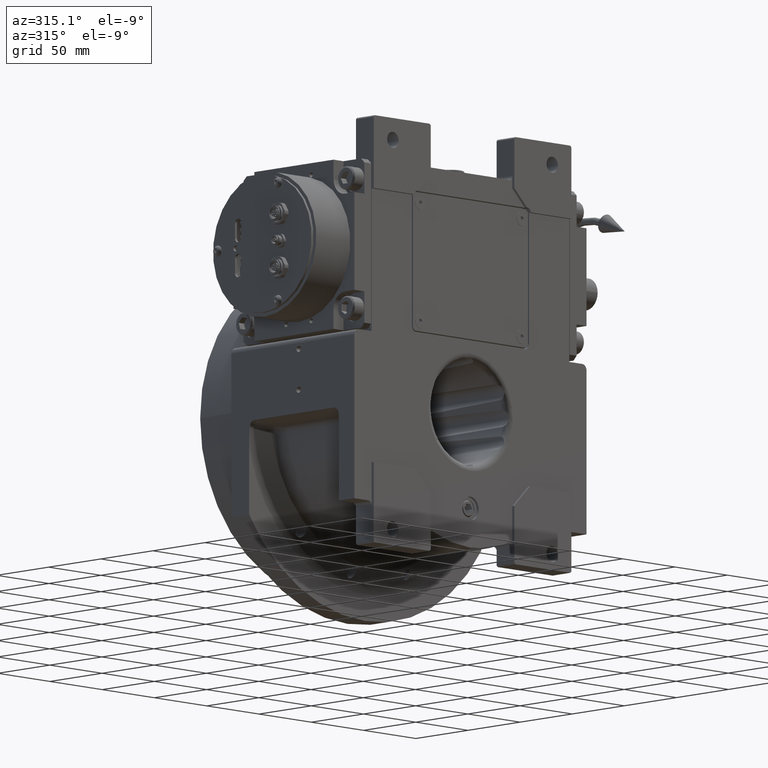
[diagram: clean part render]
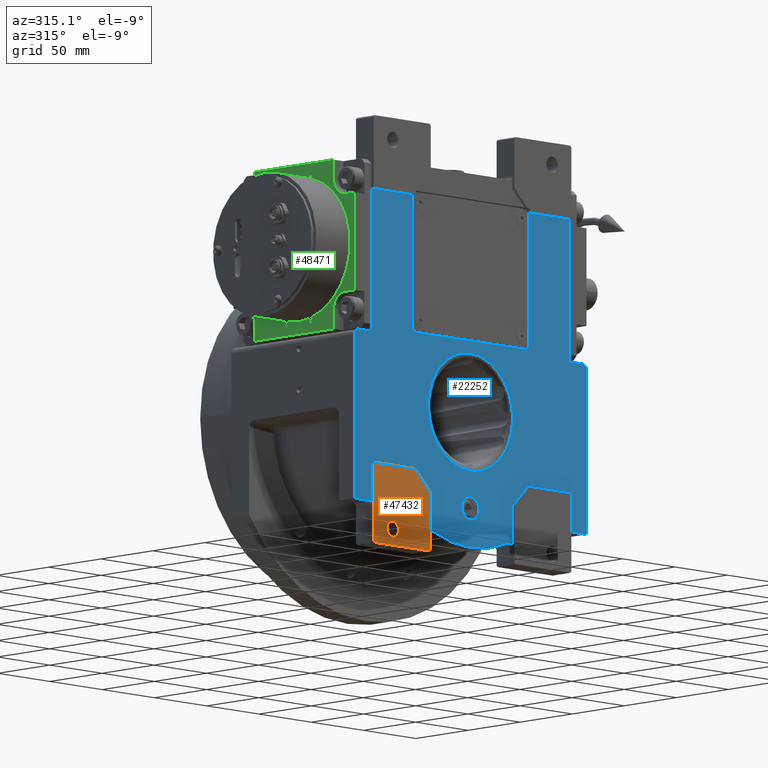
[diagram: same view with three faces highlighted in distinct colors, each labeled with its STEP entity id]
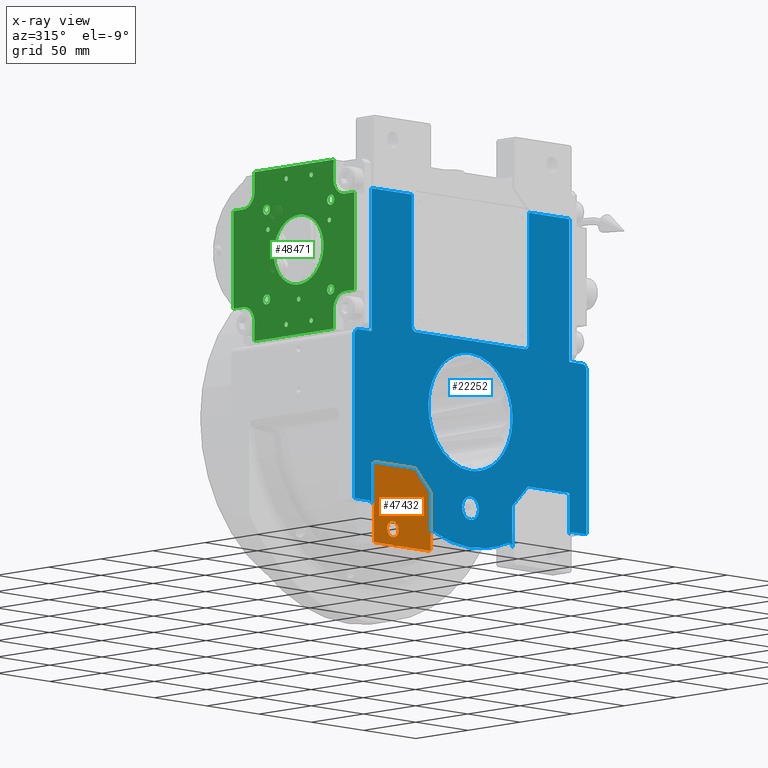
[diagram: x-ray of the same camera — body ghosted, the three highlighted faces saturated]
A machine part, auxiliary view with three faces highlighted in distinct colors.
The next image is the same camera in x-ray (body ghosted, the three faces saturated) — at least one of them is partly hidden behind the body in this view.
Their STEP definitions:

[orange] entity #47432 — the highlighted planar face has unit normal (0, -1, 0).
#55 = EDGE_CURVE ( 'NONE', #92444, #87323, #98988, .T. ) ;
#490 = VERTEX_POINT ( 'NONE', #98870 ) ;
#612 = DIRECTION ( 'NONE',  ( 0.7071067811865474617, 0.000000000000000000, -0.7071067811865474617 ) ) ;
#3598 = CARTESIAN_POINT ( 'NONE',  ( -55.00000000000000000, -55.50000000000000000, -45.00000000000000000 ) ) ;
#4281 = DIRECTION ( 'NONE',  ( -1.000000000000000000, 0.000000000000000000, 0.000000000000000000 ) ) ;
#5517 = CARTESIAN_POINT ( 'NONE',  ( -41.00000000000000000, -55.50000000000000000, -100.0000000000000000 ) ) ;
#6375 = VECTOR ( 'NONE', #58454, 1000.000000000000114 ) ;
#6552 = VERTEX_POINT ( 'NONE', #3598 ) ;
#6665 = EDGE_CURVE ( 'NONE', #96236, #6552, #89866, .T. ) ;
#7600 = EDGE_CURVE ( 'NONE', #490, #9720, #90962, .T. ) ;
#8492 = VERTEX_POINT ( 'NONE', #81477 ) ;
#9720 = VERTEX_POINT ( 'NONE', #88734 ) ;
#13145 = LINE ( 'NONE', #5517, #50026 ) ;
#13642 = DIRECTION ( 'NONE',  ( 0.000000000000000000, -1.000000000000000000, 0.000000000000000000 ) ) ;
#14151 = DIRECTION ( 'NONE',  ( -1.000000000000000000, 0.000000000000000000, 0.000000000000000000 ) ) ;
#16100 = VERTEX_POINT ( 'NONE', #90304 ) ;
#16269 = DIRECTION ( 'NONE',  ( 0.000000000000000000, 1.000000000000000000, 0.000000000000000000 ) ) ;
#18378 = AXIS2_PLACEMENT_3D ( 'NONE', #58644, #50015, #4281 ) ;
#20668 = CARTESIAN_POINT ( 'NONE',  ( -40.00000000000000000, -55.50000000000000000, -60.00000000000000000 ) ) ;
#21360 = DIRECTION ( 'NONE',  ( 1.000000000000000000, 0.000000000000000000, 0.000000000000000000 ) ) ;
#21733 = ORIENTED_EDGE ( 'NONE', *, *, #51929, .T. ) ;
#25198 = DIRECTION ( 'NONE',  ( 0.000000000000000000, 0.000000000000000000, 1.000000000000000000 ) ) ;
#27362 = DIRECTION ( 'NONE',  ( -1.000000000000000000, 0.000000000000000000, 0.000000000000000000 ) ) ;
#28897 = FACE_BOUND ( 'NONE', #68973, .T. ) ;
#28956 = CARTESIAN_POINT ( 'NONE',  ( -93.50000000000000000, -55.50000000000000000, -100.0000000000000000 ) ) ;
#29881 = ORIENTED_EDGE ( 'NONE', *, *, #86393, .T. ) ;
#30107 = VECTOR ( 'NONE', #27362, 1000.000000000000000 ) ;
#30936 = VECTOR ( 'NONE', #21360, 1000.000000000000000 ) ;
#31503 = CARTESIAN_POINT ( 'NONE',  ( -76.20000000000000284, -55.50000000000000000, -89.00000000000000000 ) ) ;
#32560 = EDGE_CURVE ( 'NONE', #6552, #490, #75098, .T. ) ;
#32574 = CARTESIAN_POINT ( 'NONE',  ( -94.50000000000000000, -55.50000000000000000, -99.00000000000000000 ) ) ;
#33309 = CARTESIAN_POINT ( 'NONE',  ( -40.00000000000000000, -55.50000000000000000, -99.00000000000000000 ) ) ;
#35673 = ORIENTED_EDGE ( 'NONE', *, *, #55, .T. ) ;
#36510 = DIRECTION ( 'NONE',  ( 0.7071067811865474617, 0.000000000000000000, 0.7071067811865474617 ) ) ;
#39222 = LINE ( 'NONE', #32574, #84364 ) ;
#44458 = CARTESIAN_POINT ( 'NONE',  ( -93.50000000000000000, -55.50000000000000000, -100.0000000000000000 ) ) ;
#44780 = DIRECTION ( 'NONE',  ( 0.000000000000000000, 0.000000000000000000, -1.000000000000000000 ) ) ;
#47277 = DIRECTION ( 'NONE',  ( 1.000000000000000000, 0.000000000000000000, 0.000000000000000000 ) ) ;
#47432 = ADVANCED_FACE ( 'NONE', ( #28897, #53802 ), #52280, .T. ) ;
#47673 = ORIENTED_EDGE ( 'NONE', *, *, #32560, .T. ) ;
#49107 = ORIENTED_EDGE ( 'NONE', *, *, #6665, .T. ) ;
#50015 = DIRECTION ( 'NONE',  ( 0.000000000000000000, 1.000000000000000000, 0.000000000000000000 ) ) ;
#50026 = VECTOR ( 'NONE', #36510, 1000.000000000000114 ) ;
#51929 = EDGE_CURVE ( 'NONE', #91321, #8492, #62145, .T. ) ;
#52280 = PLANE ( 'NONE',  #55124 ) ;
#53802 = FACE_OUTER_BOUND ( 'NONE', #97750, .T. ) ;
#54172 = CARTESIAN_POINT ( 'NONE',  ( -41.00000000000000000, -55.50000000000000000, -100.0000000000000000 ) ) ;
#55124 = AXIS2_PLACEMENT_3D ( 'NONE', #84709, #13642, #14151 ) ;
#55981 = ORIENTED_EDGE ( 'NONE', *, *, #80207, .T. ) ;
#57272 = AXIS2_PLACEMENT_3D ( 'NONE', #31503, #16269, #47277 ) ;
#58454 = DIRECTION ( 'NONE',  ( -0.7071067811865474617, 0.000000000000000000, 0.7071067811865474617 ) ) ;
#58644 = CARTESIAN_POINT ( 'NONE',  ( -76.20000000000000284, -55.50000000000000000, -89.00000000000000000 ) ) ;
#61034 = VECTOR ( 'NONE', #25198, 1000.000000000000000 ) ;
#61981 = VECTOR ( 'NONE', #44780, 1000.000000000000000 ) ;
#62145 = CIRCLE ( 'NONE', #57272, 5.500000000000005329 ) ;
#63682 = EDGE_CURVE ( 'NONE', #9720, #92444, #39222, .T. ) ;
#67059 = CARTESIAN_POINT ( 'NONE',  ( -40.00000000000000000, -55.50000000000000000, -60.00000000000000000 ) ) ;
#68973 = EDGE_LOOP ( 'NONE', ( #21733, #29881 ) ) ;
#75098 = LINE ( 'NONE', #90802, #30107 ) ;
#80207 = EDGE_CURVE ( 'NONE', #87323, #16100, #13145, .T. ) ;
#81477 = CARTESIAN_POINT ( 'NONE',  ( -81.69999999999998863, -55.50000000000000000, -89.00000000000000000 ) ) ;
#84364 = VECTOR ( 'NONE', #612, 1000.000000000000114 ) ;
#84709 = CARTESIAN_POINT ( 'NONE',  ( 0.000000000000000000, -55.50000000000000000, 0.000000000000000000 ) ) ;
#85526 = ORIENTED_EDGE ( 'NONE', *, *, #7600, .T. ) ;
#86393 = EDGE_CURVE ( 'NONE', #8492, #91321, #99406, .T. ) ;
#87323 = VERTEX_POINT ( 'NONE', #54172 ) ;
#88734 = CARTESIAN_POINT ( 'NONE',  ( -94.50000000000000000, -55.50000000000000000, -99.00000000000000000 ) ) ;
#89866 = LINE ( 'NONE', #67059, #6375 ) ;
#90304 = CARTESIAN_POINT ( 'NONE',  ( -40.00000000000000000, -55.50000000000000000, -99.00000000000000000 ) ) ;
#90802 = CARTESIAN_POINT ( 'NONE',  ( -55.00000000000000000, -55.50000000000000000, -45.00000000000000000 ) ) ;
#90962 = LINE ( 'NONE', #92975, #61981 ) ;
#91168 = EDGE_CURVE ( 'NONE', #16100, #96236, #95741, .T. ) ;
#91321 = VERTEX_POINT ( 'NONE', #92650 ) ;
#92444 = VERTEX_POINT ( 'NONE', #44458 ) ;
#92650 = CARTESIAN_POINT ( 'NONE',  ( -70.70000000000000284, -55.50000000000000000, -89.00000000000000000 ) ) ;
#92975 = CARTESIAN_POINT ( 'NONE',  ( -94.50000000000000000, -55.50000000000000000, -45.00000000000000000 ) ) ;
#95741 = LINE ( 'NONE', #33309, #61034 ) ;
#96236 = VERTEX_POINT ( 'NONE', #20668 ) ;
#97248 = ORIENTED_EDGE ( 'NONE', *, *, #91168, .T. ) ;
#97750 = EDGE_LOOP ( 'NONE', ( #35673, #55981, #97248, #49107, #47673, #85526, #99052 ) ) ;
#98870 = CARTESIAN_POINT ( 'NONE',  ( -94.50000000000000000, -55.50000000000000000, -45.00000000000000000 ) ) ;
#98988 = LINE ( 'NONE', #28956, #30936 ) ;
#99052 = ORIENTED_EDGE ( 'NONE', *, *, #63682, .T. ) ;
#99406 = CIRCLE ( 'NONE', #18378, 5.500000000000005329 ) ;

[blue] entity #22252 — the highlighted planar face has unit normal (0, 1, 0).
#92 = EDGE_CURVE ( 'NONE', #42017, #4329, #20846, .T. ) ;
#386 =( BOUNDED_CURVE ( )  B_SPLINE_CURVE ( 3, ( #20168, #76999, #1328, #55669 ),
 .UNSPECIFIED., .F., .F. ) 
 B_SPLINE_CURVE_WITH_KNOTS ( ( 4, 4 ),
 ( 4.574175343352308687, 7.715766673011676957 ),
 .UNSPECIFIED. ) 
 CURVE ( )  GEOMETRIC_REPRESENTATION_ITEM ( )  RATIONAL_B_SPLINE_CURVE ( ( 1.000000000000000000, 0.3333337746434750226, 0.3333337746434750226, 1.000000000000000000 ) ) 
 REPRESENTATION_ITEM ( '' )  );
#520 = DIRECTION ( 'NONE',  ( -0.3854166666666676289, 0.000000000000000000, 0.9227426472508761801 ) ) ;
#754 = DIRECTION ( 'NONE',  ( 1.000000000000000000, 0.000000000000000000, 0.000000000000000000 ) ) ;
#957 =( BOUNDED_CURVE ( )  B_SPLINE_CURVE ( 3, ( #37346, #29720, #46981, #77937 ),
 .UNSPECIFIED., .F., .F. ) 
 B_SPLINE_CURVE_WITH_KNOTS ( ( 4, 4 ),
 ( 1.432582689913126872, 4.574174019572492256 ),
 .UNSPECIFIED. ) 
 CURVE ( )  GEOMETRIC_REPRESENTATION_ITEM ( )  RATIONAL_B_SPLINE_CURVE ( ( 1.000000000000000000, 0.3333337746434759108, 0.3333337746434759108, 1.000000000000000000 ) ) 
 REPRESENTATION_ITEM ( '' )  );
#1328 = CARTESIAN_POINT ( 'NONE',  ( 80.61913312125007280, -53.49999999999999289, -40.30955543265933727 ) ) ;
#1357 = AXIS2_PLACEMENT_3D ( 'NONE', #14212, #29959, #21841 ) ;
#1366 = VERTEX_POINT ( 'NONE', #38615 ) ;
#2215 = EDGE_CURVE ( 'NONE', #23269, #16604, #43758, .T. ) ;
#2494 = CARTESIAN_POINT ( 'NONE',  ( 94.50000000000000000, -53.50000000000000000, -45.00000000000000000 ) ) ;
#2613 = ORIENTED_EDGE ( 'NONE', *, *, #9980, .F. ) ;
#2693 = DIRECTION ( 'NONE',  ( -1.000000000000000000, 0.000000000000000000, 0.000000000000000000 ) ) ;
#2726 = EDGE_CURVE ( 'NONE', #30020, #59581, #386, .T. ) ;
#3116 = CARTESIAN_POINT ( 'NONE',  ( -8.881784197001250351E-16, -53.50000000000000000, -66.00000000000000000 ) ) ;
#3368 = DIRECTION ( 'NONE',  ( 0.000000000000000000, -1.000000000000000000, 0.000000000000000000 ) ) ;
#4049 = AXIS2_PLACEMENT_3D ( 'NONE', #3116, #35591, #50350 ) ;
#4107 = CARTESIAN_POINT ( 'NONE',  ( 40.00000000000000000, -53.50000000000000000, -60.00000000000000000 ) ) ;
#4329 = VERTEX_POINT ( 'NONE', #34792 ) ;
#4505 = CARTESIAN_POINT ( 'NONE',  ( 56.00000000000000000, -53.50000000000000000, 53.00000000000000000 ) ) ;
#4809 = CIRCLE ( 'NONE', #98863, 3.000000000000002665 ) ;
#5374 = DIRECTION ( 'NONE',  ( -0.3854166666666672403, 0.000000000000000000, -0.9227426472508764022 ) ) ;
#5687 = DIRECTION ( 'NONE',  ( 0.000000000000000000, 1.000000000000000000, 0.000000000000000000 ) ) ;
#5848 = AXIS2_PLACEMENT_3D ( 'NONE', #52934, #5687, #51932 ) ;
#5979 = CARTESIAN_POINT ( 'NONE',  ( -56.00000000000000000, -53.50000000000000000, 142.0000000000000000 ) ) ;
#6007 = LINE ( 'NONE', #4505, #8566 ) ;
#6359 = CARTESIAN_POINT ( 'NONE',  ( 55.00000000000000000, -53.50000000000000000, -45.00000000000000000 ) ) ;
#6484 = VECTOR ( 'NONE', #754, 1000.000000000000000 ) ;
#7706 = CARTESIAN_POINT ( 'NONE',  ( -94.50000000000000000, -53.50000000000000000, 45.00000000000000000 ) ) ;
#7785 = CARTESIAN_POINT ( 'NONE',  ( -52.00000000000000000, -53.50000000000000000, 49.00000000000000000 ) ) ;
#7921 = LINE ( 'NONE', #85071, #41365 ) ;
#7927 = CARTESIAN_POINT ( 'NONE',  ( 35.84375000000000000, -53.50000000000000000, -85.81506619433150718 ) ) ;
#8001 = EDGE_CURVE ( 'NONE', #92857, #1366, #75519, .T. ) ;
#8138 = DIRECTION ( 'NONE',  ( 0.000000000000000000, 0.000000000000000000, -1.000000000000000000 ) ) ;
#8566 = VECTOR ( 'NONE', #20250, 1000.000000000000000 ) ;
#8723 = CARTESIAN_POINT ( 'NONE',  ( 40.00000000000000000, -53.50000000000000000, -60.00000000000000000 ) ) ;
#8875 = EDGE_CURVE ( 'NONE', #66546, #46514, #11297, .T. ) ;
#8948 = ORIENTED_EDGE ( 'NONE', *, *, #40065, .F. ) ;
#9509 = CARTESIAN_POINT ( 'NONE',  ( 55.87298334620739837, -53.50000000000000000, 143.0000000000000000 ) ) ;
#9583 = DIRECTION ( 'NONE',  ( -1.000000000000000000, 0.000000000000000000, 4.625929269271481378E-15 ) ) ;
#9937 = AXIS2_PLACEMENT_3D ( 'NONE', #73577, #66961, #97863 ) ;
#9980 = EDGE_CURVE ( 'NONE', #31491, #57099, #10805, .T. ) ;
#10450 = VECTOR ( 'NONE', #73292, 1000.000000000000000 ) ;
#10631 = EDGE_CURVE ( 'NONE', #87590, #93291, #66221, .T. ) ;
#10702 = DIRECTION ( 'NONE',  ( 0.000000000000000000, 0.000000000000000000, -1.000000000000000000 ) ) ;
#10792 = LINE ( 'NONE', #42309, #83886 ) ;
#10805 = LINE ( 'NONE', #95099, #85466 ) ;
#10938 = EDGE_CURVE ( 'NONE', #4329, #89324, #84741, .T. ) ;
#11297 = LINE ( 'NONE', #42787, #10450 ) ;
#11409 = ORIENTED_EDGE ( 'NONE', *, *, #91548, .T. ) ;
#11785 = DIRECTION ( 'NONE',  ( -1.000000000000000000, 0.000000000000000000, 1.734723475976808672E-15 ) ) ;
#11883 = AXIS2_PLACEMENT_3D ( 'NONE', #36381, #28247, #83575 ) ;
#11955 = DIRECTION ( 'NONE',  ( -3.469446951953617344E-15, 0.000000000000000000, 1.000000000000000000 ) ) ;
#12293 = EDGE_CURVE ( 'NONE', #42017, #23269, #4809, .T. ) ;
#12802 = DIRECTION ( 'NONE',  ( 0.000000000000000000, -1.000000000000000000, 0.000000000000000000 ) ) ;
#13025 = EDGE_CURVE ( 'NONE', #59581, #30020, #957, .T. ) ;
#13114 = EDGE_CURVE ( 'NONE', #77564, #69204, #85517, .T. ) ;
#13671 = EDGE_CURVE ( 'NONE', #93291, #72755, #82129, .T. ) ;
#14072 = CARTESIAN_POINT ( 'NONE',  ( 52.00000000000000000, -53.50000000000000000, 49.00000000000000000 ) ) ;
#14212 = CARTESIAN_POINT ( 'NONE',  ( -51.99999999999900524, -53.50000000000000000, 142.0000000000000000 ) ) ;
#14549 = ORIENTED_EDGE ( 'NONE', *, *, #52124, .T. ) ;
#15070 = ORIENTED_EDGE ( 'NONE', *, *, #63461, .F. ) ;
#15119 = ORIENTED_EDGE ( 'NONE', *, *, #51499, .F. ) ;
#15142 = ORIENTED_EDGE ( 'NONE', *, *, #40204, .T. ) ;
#15378 = ORIENTED_EDGE ( 'NONE', *, *, #55726, .T. ) ;
#15549 = CARTESIAN_POINT ( 'NONE',  ( 94.50000000000000000, -53.50000000000000000, -74.43528539874399996 ) ) ;
#15569 = ORIENTED_EDGE ( 'NONE', *, *, #40111, .F. ) ;
#15732 = LINE ( 'NONE', #46742, #47304 ) ;
#16037 = ORIENTED_EDGE ( 'NONE', *, *, #99379, .F. ) ;
#16266 = VERTEX_POINT ( 'NONE', #85702 ) ;
#16414 = CARTESIAN_POINT ( 'NONE',  ( 55.00000000000000000, -53.50000000000000000, -45.00000000000000000 ) ) ;
#16490 = CARTESIAN_POINT ( 'NONE',  ( -107.0000000000000000, -53.50000000000000000, 45.00000000000000000 ) ) ;
#16604 = VERTEX_POINT ( 'NONE', #7927 ) ;
#16860 = VECTOR ( 'NONE', #73128, 1000.000000000000000 ) ;
#18201 = CARTESIAN_POINT ( 'NONE',  ( -37.00000000000000000, -53.50000000000000000, -88.58329413608420566 ) ) ;
#18817 = ORIENTED_EDGE ( 'NONE', *, *, #12293, .T. ) ;
#18850 = CARTESIAN_POINT ( 'NONE',  ( -56.00000000000000000, -53.50000000000000000, 142.0000000000000000 ) ) ;
#19684 = CARTESIAN_POINT ( 'NONE',  ( -107.0000000000000000, -53.50000000000000000, 45.00000000000000000 ) ) ;
#20168 = CARTESIAN_POINT ( 'NONE',  ( -1.264761546777279996E-10, -53.50000000000000000, 40.30959420574835406 ) ) ;
#20250 = DIRECTION ( 'NONE',  ( 0.000000000000000000, 0.000000000000000000, 1.000000000000000000 ) ) ;
#20482 = CIRCLE ( 'NONE', #77238, 3.000000000000002665 ) ;
#20846 = LINE ( 'NONE', #29473, #56895 ) ;
#21061 = DIRECTION ( 'NONE',  ( 1.000000000000000000, 0.000000000000000000, 1.387778780781246883E-14 ) ) ;
#21137 = CARTESIAN_POINT ( 'NONE',  ( 1.421085471520200056E-14, -53.50000000000000000, -4.263256414560599853E-14 ) ) ;
#21142 = AXIS2_PLACEMENT_3D ( 'NONE', #52624, #53128, #30241 ) ;
#21333 = EDGE_CURVE ( 'NONE', #16266, #31491, #69829, .T. ) ;
#21469 = ORIENTED_EDGE ( 'NONE', *, *, #79338, .F. ) ;
#21533 = VECTOR ( 'NONE', #27875, 1000.000000000000000 ) ;
#21841 = DIRECTION ( 'NONE',  ( -0.9682458365518610277, 0.000000000000000000, 0.2499999999999737432 ) ) ;
#22252 = ADVANCED_FACE ( 'NONE', ( #29758, #38383, #31752 ), #62751, .F. ) ;
#22640 = CARTESIAN_POINT ( 'NONE',  ( 94.50000000000000000, -53.50000000000000000, 45.00000000000000000 ) ) ;
#22668 = VECTOR ( 'NONE', #62206, 1000.000000000000000 ) ;
#22686 = AXIS2_PLACEMENT_3D ( 'NONE', #21137, #36860, #5374 ) ;
#23269 = VERTEX_POINT ( 'NONE', #84323 ) ;
#23485 = CARTESIAN_POINT ( 'NONE',  ( -94.50000000000000000, -53.50000000000000000, -45.00000000000000000 ) ) ;
#23716 = EDGE_CURVE ( 'NONE', #34332, #33259, #7921, .T. ) ;
#24215 = VERTEX_POINT ( 'NONE', #16414 ) ;
#24529 = VECTOR ( 'NONE', #28329, 1000.000000000000000 ) ;
#24919 = ORIENTED_EDGE ( 'NONE', *, *, #10938, .F. ) ;
#24980 = EDGE_LOOP ( 'NONE', ( #32864, #37268 ) ) ;
#25115 = LINE ( 'NONE', #72349, #44211 ) ;
#25148 = CIRCLE ( 'NONE', #99711, 3.999999999999996447 ) ;
#27694 = ORIENTED_EDGE ( 'NONE', *, *, #13671, .F. ) ;
#27837 = VECTOR ( 'NONE', #71609, 1000.000000000000000 ) ;
#27875 = DIRECTION ( 'NONE',  ( 1.000000000000000000, 0.000000000000000000, 0.000000000000000000 ) ) ;
#28247 = DIRECTION ( 'NONE',  ( 0.000000000000000000, -1.000000000000000000, 0.000000000000000000 ) ) ;
#28329 = DIRECTION ( 'NONE',  ( 0.000000000000000000, 0.000000000000000000, -1.000000000000000000 ) ) ;
#28775 = VERTEX_POINT ( 'NONE', #46855 ) ;
#28789 = VERTEX_POINT ( 'NONE', #8723 ) ;
#29473 = CARTESIAN_POINT ( 'NONE',  ( -40.00000000000000000, -53.50000000000000000, -88.58329413608420566 ) ) ;
#29720 = CARTESIAN_POINT ( 'NONE',  ( -80.61913312099703433, -53.49999999999999289, -40.30952624498007708 ) ) ;
#29758 = FACE_BOUND ( 'NONE', #24980, .T. ) ;
#29959 = DIRECTION ( 'NONE',  ( 0.000000000000000000, -1.000000000000000000, 0.000000000000000000 ) ) ;
#30020 = VERTEX_POINT ( 'NONE', #79300 ) ;
#30241 = DIRECTION ( 'NONE',  ( 1.000000000000000000, 0.000000000000000000, 0.000000000000000000 ) ) ;
#30300 = CARTESIAN_POINT ( 'NONE',  ( 55.87298334620739837, -53.50000000000000000, 143.0000000000000000 ) ) ;
#30718 = CARTESIAN_POINT ( 'NONE',  ( -111.0000000000000000, -53.50000000000000000, -71.43528539874409944 ) ) ;
#31208 = CARTESIAN_POINT ( 'NONE',  ( 94.50000000000000000, -53.50000000000000000, 143.0000000000000000 ) ) ;
#31491 = VERTEX_POINT ( 'NONE', #22640 ) ;
#31752 = FACE_OUTER_BOUND ( 'NONE', #37179, .T. ) ;
#32488 = DIRECTION ( 'NONE',  ( 1.000000000000000000, 0.000000000000000000, 0.000000000000000000 ) ) ;
#32816 = VERTEX_POINT ( 'NONE', #65735 ) ;
#32864 = ORIENTED_EDGE ( 'NONE', *, *, #13025, .T. ) ;
#33259 = VERTEX_POINT ( 'NONE', #87429 ) ;
#33384 = ORIENTED_EDGE ( 'NONE', *, *, #41384, .F. ) ;
#34024 = ORIENTED_EDGE ( 'NONE', *, *, #92042, .F. ) ;
#34332 = VERTEX_POINT ( 'NONE', #63495 ) ;
#34365 = CIRCLE ( 'NONE', #60361, 3.000000000000003997 ) ;
#34792 = CARTESIAN_POINT ( 'NONE',  ( -40.00000000000000000, -53.50000000000000000, -60.00000000000000000 ) ) ;
#35200 = DIRECTION ( 'NONE',  ( 0.000000000000000000, 1.000000000000000000, 0.000000000000000000 ) ) ;
#35591 = DIRECTION ( 'NONE',  ( 0.000000000000000000, -1.000000000000000000, 0.000000000000000000 ) ) ;
#35973 = VERTEX_POINT ( 'NONE', #71989 ) ;
#36381 = CARTESIAN_POINT ( 'NONE',  ( 8.881784197001250351E-16, -53.50000000000000000, -66.00000000000000000 ) ) ;
#36860 = DIRECTION ( 'NONE',  ( 0.000000000000000000, -1.000000000000000000, 0.000000000000000000 ) ) ;
#36925 = DIRECTION ( 'NONE',  ( 1.000000000000000000, 0.000000000000000000, 0.000000000000000000 ) ) ;
#37179 = EDGE_LOOP ( 'NONE', ( #91495, #99573, #27694, #65319, #8948, #15070, #63808, #73951, #51850, #48583, #11409, #15119, #51075, #24919, #64375, #18817, #46947, #72492, #34024, #61217, #15569, #98541, #15378, #14549, #79992, #15142, #2613, #98065, #21469, #54838, #33384, #16037 ) ) ;
#37268 = ORIENTED_EDGE ( 'NONE', *, *, #2726, .T. ) ;
#37346 = CARTESIAN_POINT ( 'NONE',  ( 1.264666971694413862E-10, -53.50000000000000000, -40.30959420574829721 ) ) ;
#37354 = DIRECTION ( 'NONE',  ( -0.7071067811865474617, 0.000000000000000000, -0.7071067811865474617 ) ) ;
#38075 = CARTESIAN_POINT ( 'NONE',  ( -40.00000000000000000, -53.50000000000000000, -88.58329413608420566 ) ) ;
#38383 = FACE_BOUND ( 'NONE', #86518, .T. ) ;
#38615 = CARTESIAN_POINT ( 'NONE',  ( -94.50000000000000000, -53.50000000000000000, 45.00000000000000000 ) ) ;
#38694 = VECTOR ( 'NONE', #91848, 1000.000000000000114 ) ;
#39132 = EDGE_CURVE ( 'NONE', #24215, #28789, #91150, .T. ) ;
#39584 = VERTEX_POINT ( 'NONE', #23485 ) ;
#39837 = CARTESIAN_POINT ( 'NONE',  ( -8.000000000000000000, -53.50000000000000000, -66.00000000000000000 ) ) ;
#39945 = CIRCLE ( 'NONE', #5848, 3.000000000000002665 ) ;
#39992 = EDGE_CURVE ( 'NONE', #35973, #77564, #15732, .T. ) ;
#40065 = EDGE_CURVE ( 'NONE', #83220, #87590, #94408, .T. ) ;
#40111 = EDGE_CURVE ( 'NONE', #46514, #24215, #41592, .T. ) ;
#40204 = EDGE_CURVE ( 'NONE', #33259, #57099, #57016, .T. ) ;
#40331 = DIRECTION ( 'NONE',  ( 1.000000000000000000, 0.000000000000000000, 0.000000000000000000 ) ) ;
#40506 = DIRECTION ( 'NONE',  ( 1.000000000000000000, 0.000000000000000000, 0.000000000000000000 ) ) ;
#41365 = VECTOR ( 'NONE', #92193, 1000.000000000000000 ) ;
#41384 = EDGE_CURVE ( 'NONE', #32816, #67341, #6007, .T. ) ;
#41392 = CARTESIAN_POINT ( 'NONE',  ( -55.87298334620739837, -53.50000000000000000, 143.0000000000000000 ) ) ;
#41448 = CARTESIAN_POINT ( 'NONE',  ( -107.0000000000000000, -53.50000000000000000, 41.00000000000000000 ) ) ;
#41592 = LINE ( 'NONE', #2494, #27837 ) ;
#41853 = VERTEX_POINT ( 'NONE', #39837 ) ;
#42017 = VERTEX_POINT ( 'NONE', #38075 ) ;
#42139 = LINE ( 'NONE', #7785, #16860 ) ;
#42309 = CARTESIAN_POINT ( 'NONE',  ( -55.00000000000000000, -53.50000000000000000, -45.00000000000000000 ) ) ;
#42615 = LINE ( 'NONE', #91306, #21533 ) ;
#42787 = CARTESIAN_POINT ( 'NONE',  ( 94.50000000000000000, -53.50000000000000000, -74.43528539874399996 ) ) ;
#43665 = VERTEX_POINT ( 'NONE', #91260 ) ;
#43758 = CIRCLE ( 'NONE', #22686, 92.99999999999995737 ) ;
#43972 = EDGE_CURVE ( 'NONE', #92857, #35973, #25148, .T. ) ;
#44211 = VECTOR ( 'NONE', #55130, 1000.000000000000000 ) ;
#45311 = CARTESIAN_POINT ( 'NONE',  ( 52.00000000000000000, -53.50000000000000000, 53.00000000000000000 ) ) ;
#46514 = VERTEX_POINT ( 'NONE', #58757 ) ;
#46558 = ORIENTED_EDGE ( 'NONE', *, *, #70146, .F. ) ;
#46729 = VERTEX_POINT ( 'NONE', #61268 ) ;
#46742 = CARTESIAN_POINT ( 'NONE',  ( -111.0000000000000000, -53.50000000000000000, 41.00000000000000000 ) ) ;
#46855 = CARTESIAN_POINT ( 'NONE',  ( -52.00000000000000000, -53.50000000000000000, 49.00000000000000000 ) ) ;
#46947 = ORIENTED_EDGE ( 'NONE', *, *, #2215, .T. ) ;
#46981 = CARTESIAN_POINT ( 'NONE',  ( -80.61913312124997333, -53.49999999999999289, 40.30955543265923069 ) ) ;
#47304 = VECTOR ( 'NONE', #8138, 1000.000000000000000 ) ;
#48583 = ORIENTED_EDGE ( 'NONE', *, *, #13114, .T. ) ;
#50350 = DIRECTION ( 'NONE',  ( -1.000000000000000000, 0.000000000000000000, 0.000000000000000000 ) ) ;
#51075 = ORIENTED_EDGE ( 'NONE', *, *, #99108, .F. ) ;
#51499 = EDGE_CURVE ( 'NONE', #39584, #63464, #25115, .T. ) ;
#51822 = DIRECTION ( 'NONE',  ( 0.000000000000000000, 0.000000000000000000, 1.000000000000000000 ) ) ;
#51850 = ORIENTED_EDGE ( 'NONE', *, *, #39992, .T. ) ;
#51932 = DIRECTION ( 'NONE',  ( -1.000000000000000000, 0.000000000000000000, 0.000000000000000000 ) ) ;
#52124 = EDGE_CURVE ( 'NONE', #46729, #34332, #42615, .T. ) ;
#52624 = CARTESIAN_POINT ( 'NONE',  ( 0.000000000000000000, -53.50000000000000000, 0.000000000000000000 ) ) ;
#52934 = CARTESIAN_POINT ( 'NONE',  ( 97.50000000000000000, -53.50000000000000000, -74.43528539874399996 ) ) ;
#53128 = DIRECTION ( 'NONE',  ( -0.000000000000000000, 1.000000000000000000, 0.000000000000000000 ) ) ;
#53950 = DIRECTION ( 'NONE',  ( 0.000000000000000000, 0.000000000000000000, -1.000000000000000000 ) ) ;
#53967 = EDGE_CURVE ( 'NONE', #67341, #85180, #73716, .T. ) ;
#54838 = ORIENTED_EDGE ( 'NONE', *, *, #53967, .F. ) ;
#55130 = DIRECTION ( 'NONE',  ( 0.000000000000000000, 0.000000000000000000, -1.000000000000000000 ) ) ;
#55421 = CARTESIAN_POINT ( 'NONE',  ( -94.50000000000000000, -53.50000000000000000, 143.0000000000000000 ) ) ;
#55669 = CARTESIAN_POINT ( 'NONE',  ( 1.264666971694413862E-10, -53.50000000000000000, -40.30959420574829721 ) ) ;
#55713 = CIRCLE ( 'NONE', #11883, 8.000000000000000000 ) ;
#55726 = EDGE_CURVE ( 'NONE', #66546, #46729, #39945, .T. ) ;
#56895 = VECTOR ( 'NONE', #51822, 1000.000000000000000 ) ;
#57016 = CIRCLE ( 'NONE', #9937, 4.000000000000003553 ) ;
#57099 = VERTEX_POINT ( 'NONE', #91626 ) ;
#57322 = DIRECTION ( 'NONE',  ( 0.000000000000000000, 1.000000000000000000, 0.000000000000000000 ) ) ;
#58757 = CARTESIAN_POINT ( 'NONE',  ( 94.50000000000000000, -53.50000000000000000, -45.00000000000000000 ) ) ;
#59032 = CARTESIAN_POINT ( 'NONE',  ( -52.00000000000000000, -53.50000000000000000, 53.00000000000000000 ) ) ;
#59119 = CARTESIAN_POINT ( 'NONE',  ( -56.00000000000000000, -53.50000000000000000, 53.00000000000000000 ) ) ;
#59352 = CIRCLE ( 'NONE', #77401, 3.999999999999996447 ) ;
#59581 = VERTEX_POINT ( 'NONE', #74851 ) ;
#60361 = AXIS2_PLACEMENT_3D ( 'NONE', #70590, #62978, #520 ) ;
#61164 = CARTESIAN_POINT ( 'NONE',  ( 51.99999999999940314, -53.50000000000000000, 142.0000000000000000 ) ) ;
#61217 = ORIENTED_EDGE ( 'NONE', *, *, #39132, .F. ) ;
#61268 = CARTESIAN_POINT ( 'NONE',  ( 97.50000000000000000, -53.50000000000000000, -71.43528539874399996 ) ) ;
#61839 = VERTEX_POINT ( 'NONE', #84963 ) ;
#62206 = DIRECTION ( 'NONE',  ( 0.000000000000000000, 0.000000000000000000, -1.000000000000000000 ) ) ;
#62751 = PLANE ( 'NONE',  #21142 ) ;
#62978 = DIRECTION ( 'NONE',  ( 0.000000000000000000, 1.000000000000000000, 0.000000000000000000 ) ) ;
#63461 = EDGE_CURVE ( 'NONE', #1366, #83220, #82876, .T. ) ;
#63464 = VERTEX_POINT ( 'NONE', #99586 ) ;
#63495 = CARTESIAN_POINT ( 'NONE',  ( 111.0000000000000000, -53.50000000000000000, -71.43528539874399996 ) ) ;
#63808 = ORIENTED_EDGE ( 'NONE', *, *, #8001, .F. ) ;
#64375 = ORIENTED_EDGE ( 'NONE', *, *, #92, .F. ) ;
#65147 = EDGE_CURVE ( 'NONE', #16604, #43665, #34365, .T. ) ;
#65319 = ORIENTED_EDGE ( 'NONE', *, *, #10631, .F. ) ;
#65466 = ORIENTED_EDGE ( 'NONE', *, *, #73628, .F. ) ;
#65735 = CARTESIAN_POINT ( 'NONE',  ( 56.00000000000000000, -53.50000000000000000, 53.00000000000000000 ) ) ;
#66189 = DIRECTION ( 'NONE',  ( 0.000000000000000000, 0.000000000000000000, 1.000000000000000000 ) ) ;
#66221 = CIRCLE ( 'NONE', #1357, 4.000000000000978773 ) ;
#66546 = VERTEX_POINT ( 'NONE', #15549 ) ;
#66961 = DIRECTION ( 'NONE',  ( 0.000000000000000000, -1.000000000000000000, 0.000000000000000000 ) ) ;
#67341 = VERTEX_POINT ( 'NONE', #73770 ) ;
#68571 = CARTESIAN_POINT ( 'NONE',  ( -97.50000000000000000, -53.50000000000000000, -71.43528539874409944 ) ) ;
#68675 = DIRECTION ( 'NONE',  ( 0.000000000000000000, 0.000000000000000000, 1.000000000000000000 ) ) ;
#69204 = VERTEX_POINT ( 'NONE', #68571 ) ;
#69829 = LINE ( 'NONE', #31208, #22668 ) ;
#70014 = VECTOR ( 'NONE', #32488, 1000.000000000000000 ) ;
#70146 = EDGE_CURVE ( 'NONE', #41853, #61839, #78638, .T. ) ;
#70590 = CARTESIAN_POINT ( 'NONE',  ( 37.00000000000000000, -53.50000000000000000, -88.58329413608420566 ) ) ;
#71609 = DIRECTION ( 'NONE',  ( -1.000000000000000000, 0.000000000000000000, 0.000000000000000000 ) ) ;
#71989 = CARTESIAN_POINT ( 'NONE',  ( -111.0000000000000000, -53.50000000000000000, 41.00000000000000000 ) ) ;
#72349 = CARTESIAN_POINT ( 'NONE',  ( -94.50000000000000000, -53.50000000000000000, -45.00000000000000000 ) ) ;
#72492 = ORIENTED_EDGE ( 'NONE', *, *, #65147, .T. ) ;
#72684 = AXIS2_PLACEMENT_3D ( 'NONE', #45311, #12802, #53950 ) ;
#72755 = VERTEX_POINT ( 'NONE', #59119 ) ;
#73128 = DIRECTION ( 'NONE',  ( 1.000000000000000000, 0.000000000000000000, 0.000000000000000000 ) ) ;
#73292 = DIRECTION ( 'NONE',  ( 0.000000000000000000, 0.000000000000000000, 1.000000000000000000 ) ) ;
#73577 = CARTESIAN_POINT ( 'NONE',  ( 107.0000000000000000, -53.50000000000000000, 41.00000000000000000 ) ) ;
#73628 = EDGE_CURVE ( 'NONE', #61839, #41853, #55713, .T. ) ;
#73682 = LINE ( 'NONE', #4107, #98423 ) ;
#73716 = CIRCLE ( 'NONE', #91505, 4.000000000000572875 ) ;
#73770 = CARTESIAN_POINT ( 'NONE',  ( 56.00000000000000000, -53.50000000000000000, 142.0000000000000000 ) ) ;
#73951 = ORIENTED_EDGE ( 'NONE', *, *, #43972, .T. ) ;
#74851 = CARTESIAN_POINT ( 'NONE',  ( 1.264666971694413862E-10, -53.50000000000000000, -40.30959420574829721 ) ) ;
#75519 = LINE ( 'NONE', #19684, #92725 ) ;
#76999 = CARTESIAN_POINT ( 'NONE',  ( 80.61913312099713380, -53.49999999999999289, 40.30952624498025472 ) ) ;
#77238 = AXIS2_PLACEMENT_3D ( 'NONE', #80880, #35200, #66189 ) ;
#77401 = AXIS2_PLACEMENT_3D ( 'NONE', #59032, #82330, #11785 ) ;
#77564 = VERTEX_POINT ( 'NONE', #85520 ) ;
#77937 = CARTESIAN_POINT ( 'NONE',  ( -1.264761546777279996E-10, -53.50000000000000000, 40.30959420574835406 ) ) ;
#78638 = CIRCLE ( 'NONE', #4049, 8.000000000000000000 ) ;
#79061 = VECTOR ( 'NONE', #40506, 1000.000000000000000 ) ;
#79300 = CARTESIAN_POINT ( 'NONE',  ( -1.264761546777279996E-10, -53.50000000000000000, 40.30959420574835406 ) ) ;
#79338 = EDGE_CURVE ( 'NONE', #85180, #16266, #86671, .T. ) ;
#79674 = CARTESIAN_POINT ( 'NONE',  ( -94.50000000000000000, -53.50000000000000000, 143.0000000000000000 ) ) ;
#79992 = ORIENTED_EDGE ( 'NONE', *, *, #23716, .T. ) ;
#80880 = CARTESIAN_POINT ( 'NONE',  ( -97.50000000000000000, -53.50000000000000000, -74.43528539874409944 ) ) ;
#82129 = LINE ( 'NONE', #5979, #24529 ) ;
#82330 = DIRECTION ( 'NONE',  ( 0.000000000000000000, -1.000000000000000000, 0.000000000000000000 ) ) ;
#82876 = LINE ( 'NONE', #7706, #94076 ) ;
#83220 = VERTEX_POINT ( 'NONE', #55421 ) ;
#83575 = DIRECTION ( 'NONE',  ( 1.000000000000000000, 0.000000000000000000, 0.000000000000000000 ) ) ;
#83886 = VECTOR ( 'NONE', #2693, 1000.000000000000000 ) ;
#84323 = CARTESIAN_POINT ( 'NONE',  ( -35.84375000000000000, -53.50000000000000000, -85.81506619433150718 ) ) ;
#84741 = LINE ( 'NONE', #93860, #38694 ) ;
#84963 = CARTESIAN_POINT ( 'NONE',  ( 8.000000000000000000, -53.50000000000000000, -66.00000000000000000 ) ) ;
#85071 = CARTESIAN_POINT ( 'NONE',  ( 111.0000000000000000, -53.50000000000000000, -71.43528539874399996 ) ) ;
#85180 = VERTEX_POINT ( 'NONE', #30300 ) ;
#85466 = VECTOR ( 'NONE', #40331, 1000.000000000000000 ) ;
#85517 = LINE ( 'NONE', #30718, #6484 ) ;
#85520 = CARTESIAN_POINT ( 'NONE',  ( -111.0000000000000000, -53.50000000000000000, -71.43528539874409944 ) ) ;
#85702 = CARTESIAN_POINT ( 'NONE',  ( 94.50000000000000000, -53.50000000000000000, 143.0000000000000000 ) ) ;
#86518 = EDGE_LOOP ( 'NONE', ( #65466, #46558 ) ) ;
#86671 = LINE ( 'NONE', #9509, #79061 ) ;
#86750 = EDGE_CURVE ( 'NONE', #28775, #91051, #42139, .T. ) ;
#87429 = CARTESIAN_POINT ( 'NONE',  ( 111.0000000000000000, -53.50000000000000000, 41.00000000000000000 ) ) ;
#87590 = VERTEX_POINT ( 'NONE', #41392 ) ;
#89324 = VERTEX_POINT ( 'NONE', #96086 ) ;
#90083 = DIRECTION ( 'NONE',  ( 0.000000000000000000, -1.000000000000000000, 0.000000000000000000 ) ) ;
#91051 = VERTEX_POINT ( 'NONE', #14072 ) ;
#91150 = LINE ( 'NONE', #6359, #94161 ) ;
#91260 = CARTESIAN_POINT ( 'NONE',  ( 40.00000000000000000, -53.50000000000000000, -88.58329413608420566 ) ) ;
#91306 = CARTESIAN_POINT ( 'NONE',  ( 97.50000000000000000, -53.50000000000000000, -71.43528539874399996 ) ) ;
#91495 = ORIENTED_EDGE ( 'NONE', *, *, #86750, .F. ) ;
#91505 = AXIS2_PLACEMENT_3D ( 'NONE', #61164, #90083, #21061 ) ;
#91548 = EDGE_CURVE ( 'NONE', #69204, #63464, #20482, .T. ) ;
#91626 = CARTESIAN_POINT ( 'NONE',  ( 107.0000000000000000, -53.50000000000000000, 45.00000000000000000 ) ) ;
#91848 = DIRECTION ( 'NONE',  ( -0.7071067811865474617, 0.000000000000000000, 0.7071067811865474617 ) ) ;
#92042 = EDGE_CURVE ( 'NONE', #28789, #43665, #73682, .T. ) ;
#92193 = DIRECTION ( 'NONE',  ( 6.319570704518680589E-16, 0.000000000000000000, 1.000000000000000000 ) ) ;
#92725 = VECTOR ( 'NONE', #36925, 1000.000000000000000 ) ;
#92857 = VERTEX_POINT ( 'NONE', #16490 ) ;
#93291 = VERTEX_POINT ( 'NONE', #18850 ) ;
#93751 = CIRCLE ( 'NONE', #72684, 3.999999999999996447 ) ;
#93860 = CARTESIAN_POINT ( 'NONE',  ( -40.00000000000000000, -53.50000000000000000, -60.00000000000000000 ) ) ;
#94076 = VECTOR ( 'NONE', #68675, 1000.000000000000000 ) ;
#94161 = VECTOR ( 'NONE', #37354, 1000.000000000000114 ) ;
#94408 = LINE ( 'NONE', #79674, #70014 ) ;
#95099 = CARTESIAN_POINT ( 'NONE',  ( 94.50000000000000000, -53.50000000000000000, 45.00000000000000000 ) ) ;
#96086 = CARTESIAN_POINT ( 'NONE',  ( -55.00000000000000000, -53.50000000000000000, -45.00000000000000000 ) ) ;
#97156 = EDGE_CURVE ( 'NONE', #72755, #28775, #59352, .T. ) ;
#97863 = DIRECTION ( 'NONE',  ( 1.000000000000000000, 0.000000000000000000, 5.204170427930416550E-15 ) ) ;
#98065 = ORIENTED_EDGE ( 'NONE', *, *, #21333, .F. ) ;
#98423 = VECTOR ( 'NONE', #10702, 1000.000000000000000 ) ;
#98541 = ORIENTED_EDGE ( 'NONE', *, *, #8875, .F. ) ;
#98863 = AXIS2_PLACEMENT_3D ( 'NONE', #18201, #57322, #9583 ) ;
#99108 = EDGE_CURVE ( 'NONE', #89324, #39584, #10792, .T. ) ;
#99379 = EDGE_CURVE ( 'NONE', #91051, #32816, #93751, .T. ) ;
#99573 = ORIENTED_EDGE ( 'NONE', *, *, #97156, .F. ) ;
#99586 = CARTESIAN_POINT ( 'NONE',  ( -94.50000000000000000, -53.50000000000000000, -74.43528539874409944 ) ) ;
#99711 = AXIS2_PLACEMENT_3D ( 'NONE', #41448, #3368, #11955 ) ;

[green] entity #48471 — the highlighted planar face has unit normal (1, -0, -0).
#308 = EDGE_LOOP ( 'NONE', ( #99270, #77595 ) ) ;
#469 = CARTESIAN_POINT ( 'NONE',  ( 1.566390494059519911, -15.99999999999982414, -23.86388755148671592 ) ) ;
#755 = ORIENTED_EDGE ( 'NONE', *, *, #57605, .F. ) ;
#820 = VERTEX_POINT ( 'NONE', #18584 ) ;
#922 = VERTEX_POINT ( 'NONE', #69725 ) ;
#1239 = CARTESIAN_POINT ( 'NONE',  ( 1.650000000001916822, -15.99999999999998579, 34.00000000000000000 ) ) ;
#1375 = CARTESIAN_POINT ( 'NONE',  ( -11.99999999999716849, -15.99999999999998579, 49.99999999999906208 ) ) ;
#1776 = AXIS2_PLACEMENT_3D ( 'NONE', #87448, #57517, #33630 ) ;
#1840 = VECTOR ( 'NONE', #60605, 1000.000000000000000 ) ;
#1911 = EDGE_CURVE ( 'NONE', #90909, #38087, #43918, .T. ) ;
#2252 = AXIS2_PLACEMENT_3D ( 'NONE', #28542, #4196, #82346 ) ;
#2968 = LINE ( 'NONE', #74040, #41952 ) ;
#3021 = EDGE_CURVE ( 'NONE', #26787, #64878, #40913, .T. ) ;
#3275 = CIRCLE ( 'NONE', #45487, 1.650000000000000355 ) ;
#3340 = VERTEX_POINT ( 'NONE', #76383 ) ;
#3584 = CARTESIAN_POINT ( 'NONE',  ( 11.99999999999716849, -15.99999999999947242, -49.99999999999996447 ) ) ;
#4099 = CARTESIAN_POINT ( 'NONE',  ( -18.97209777395319463, -16.00000000000011369, 14.56031380967955613 ) ) ;
#4196 = DIRECTION ( 'NONE',  ( -1.885615403823469748E-28, -1.000000000000000000, -7.549516567451080252E-15 ) ) ;
#4599 = CARTESIAN_POINT ( 'NONE',  ( 11.95536768126206262, -16.00000000000015632, 20.71261955372786545 ) ) ;
#5104 = CARTESIAN_POINT ( 'NONE',  ( -7.684686402435258579, -16.00000000000017408, 22.64704931693637846 ) ) ;
#5328 = VERTEX_POINT ( 'NONE', #90863 ) ;
#5347 = ORIENTED_EDGE ( 'NONE', *, *, #93763, .F. ) ;
#5423 = CARTESIAN_POINT ( 'NONE',  ( -31.09486372867160497, -16.00000000000000000, -17.00000000000189004 ) ) ;
#6259 = LINE ( 'NONE', #29124, #69453 ) ;
#6262 = ORIENTED_EDGE ( 'NONE', *, *, #59473, .F. ) ;
#6438 = DIRECTION ( 'NONE',  ( -1.885615403823469748E-28, -1.000000000000000000, -7.549516567451080252E-15 ) ) ;
#6558 = CARTESIAN_POINT ( 'NONE',  ( 22.64660284161369930, -15.99999999999994138, -7.686057710831378564 ) ) ;
#6700 = VERTEX_POINT ( 'NONE', #15538 ) ;
#7097 = DIRECTION ( 'NONE',  ( -1.885615403823469748E-28, -1.000000000000000000, -7.549516567451080252E-15 ) ) ;
#7345 = EDGE_CURVE ( 'NONE', #98741, #95783, #53780, .T. ) ;
#8336 = ORIENTED_EDGE ( 'NONE', *, *, #7345, .F. ) ;
#8528 = CARTESIAN_POINT ( 'NONE',  ( -23.86220687115113392, -15.99999999999999289, -1.575521332451667700 ) ) ;
#8623 = ORIENTED_EDGE ( 'NONE', *, *, #50039, .F. ) ;
#8899 = CARTESIAN_POINT ( 'NONE',  ( -33.49999999999669598, -15.99999999999905675, 57.99999999999764100 ) ) ;
#8942 = DIRECTION ( 'NONE',  ( 1.000000000000000000, 0.000000000000000000, 5.677276830469552499E-14 ) ) ;
#9052 = CIRCLE ( 'NONE', #62583, 3.399999999999996803 ) ;
#9373 = AXIS2_PLACEMENT_3D ( 'NONE', #34025, #25915, #34533 ) ;
#9511 = ORIENTED_EDGE ( 'NONE', *, *, #34746, .F. ) ;
#9549 = DIRECTION ( 'NONE',  ( -1.000000000000000000, 0.000000000000000000, -5.510298100161621793E-14 ) ) ;
#9600 = VERTEX_POINT ( 'NONE', #56817 ) ;
#9756 = CARTESIAN_POINT ( 'NONE',  ( 42.49999999999670308, -15.99999999999998579, -57.99999999999732836 ) ) ;
#9784 = FACE_BOUND ( 'NONE', #65444, .T. ) ;
#10676 = EDGE_LOOP ( 'NONE', ( #86999, #8336 ) ) ;
#10697 = CARTESIAN_POINT ( 'NONE',  ( -22.64660340996107735, -16.00000000000006040, 7.686055968331926280 ) ) ;
#10714 = EDGE_CURVE ( 'NONE', #86486, #31295, #88862, .T. ) ;
#10876 = VERTEX_POINT ( 'NONE', #46703 ) ;
#10954 = ORIENTED_EDGE ( 'NONE', *, *, #73684, .F. ) ;
#10966 = CIRCLE ( 'NONE', #74280, 1.650000000000000355 ) ;
#11096 = VERTEX_POINT ( 'NONE', #49684 ) ;
#11207 = CARTESIAN_POINT ( 'NONE',  ( -23.54567858014874560, -16.00000000000003197, 3.888438995620457472 ) ) ;
#11703 = CARTESIAN_POINT ( 'NONE',  ( -12.00000000000283151, -16.00000000000000000, -50.00000000000004263 ) ) ;
#11710 = CARTESIAN_POINT ( 'NONE',  ( -23.80515710797227413, -16.00000000000001066, 1.960048708334195755 ) ) ;
#12200 = CARTESIAN_POINT ( 'NONE',  ( -15.76697598953476920, -16.00000000000013856, 17.98186660463380449 ) ) ;
#12998 = CARTESIAN_POINT ( 'NONE',  ( 42.49999999999670308, -15.99999999999998579, -57.99999999999732836 ) ) ;
#13019 = CARTESIAN_POINT ( 'NONE',  ( -44.50000000000188294, -16.00000000000000000, -33.50000000000378009 ) ) ;
#13534 = DIRECTION ( 'NONE',  ( -1.000000000000000000, 0.000000000000000000, -5.467007318229936381E-14 ) ) ;
#13702 = CARTESIAN_POINT ( 'NONE',  ( 23.10538455811011360, -16.00000000000005329, 5.991162440384711019 ) ) ;
#13921 = EDGE_CURVE ( 'NONE', #81767, #10876, #95826, .T. ) ;
#13980 = VERTEX_POINT ( 'NONE', #68844 ) ;
#14697 = CARTESIAN_POINT ( 'NONE',  ( 53.50000000000262190, -15.99999999999998579, 44.50000000000282796 ) ) ;
#15137 = CARTESIAN_POINT ( 'NONE',  ( -23.24085855080066310, -15.99999999999996625, -5.420324715344525757 ) ) ;
#15329 = CIRCLE ( 'NONE', #39723, 3.399999999999996803 ) ;
#15538 = CARTESIAN_POINT ( 'NONE',  ( 42.49999999999670308, -15.99999999999998579, -57.99999999999732836 ) ) ;
#15624 = CARTESIAN_POINT ( 'NONE',  ( -33.49999999999737810, -15.99999999999997335, 44.49999999999764100 ) ) ;
#15634 = CARTESIAN_POINT ( 'NONE',  ( -17.98238733659876942, -15.99999999999988276, -15.76635765307158543 ) ) ;
#15691 = AXIS2_PLACEMENT_3D ( 'NONE', #41198, #56458, #87383 ) ;
#15725 = EDGE_CURVE ( 'NONE', #26787, #25001, #48253, .T. ) ;
#15878 = EDGE_CURVE ( 'NONE', #60743, #31937, #87053, .T. ) ;
#16134 = CARTESIAN_POINT ( 'NONE',  ( -6.191738417275473694, -15.99999999999982414, -23.09992920858569931 ) ) ;
#16520 = CARTESIAN_POINT ( 'NONE',  ( 23.86396582665383548, -16.00000160339995503, 1.643629538028434922E-07 ) ) ;
#16590 = DIRECTION ( 'NONE',  ( -1.885615403823469748E-28, -1.000000000000000000, -7.549516567451080252E-15 ) ) ;
#17049 = CARTESIAN_POINT ( 'NONE',  ( -44.49999999999737810, -15.99999999999998579, 44.49999999999716493 ) ) ;
#17326 = LINE ( 'NONE', #79280, #53841 ) ;
#17524 = EDGE_CURVE ( 'NONE', #60471, #52319, #10966, .T. ) ;
#17600 = ORIENTED_EDGE ( 'NONE', *, *, #64964, .F. ) ;
#17648 = EDGE_LOOP ( 'NONE', ( #30109, #79503 ) ) ;
#18062 = EDGE_LOOP ( 'NONE', ( #65991, #93570 ) ) ;
#18325 = CARTESIAN_POINT ( 'NONE',  ( -23.86396582665336297, -16.00000160339995503, -1.643633701364777266E-07 ) ) ;
#18584 = CARTESIAN_POINT ( 'NONE',  ( -27.35914498161634967, -15.99999999999905675, -30.75914498161591482 ) ) ;
#18819 = CIRCLE ( 'NONE', #75593, 3.399999999999996803 ) ;
#19034 = VERTEX_POINT ( 'NONE', #94953 ) ;
#19148 = EDGE_CURVE ( 'NONE', #66331, #3340, #38554, .T. ) ;
#19175 = CIRCLE ( 'NONE', #58047, 1.649999999999999911 ) ;
#19176 = VECTOR ( 'NONE', #39389, 1000.000000000000000 ) ;
#19412 = CIRCLE ( 'NONE', #33963, 3.400000000000000355 ) ;
#19414 = FACE_BOUND ( 'NONE', #17648, .T. ) ;
#19848 = CARTESIAN_POINT ( 'NONE',  ( -3.118984594019936996, -16.00000000000018474, 23.71104185170258916 ) ) ;
#20449 = LINE ( 'NONE', #90999, #43740 ) ;
#20897 = CARTESIAN_POINT ( 'NONE',  ( -30.75914498161283106, -16.00000000000000000, 30.75914498161291988 ) ) ;
#21239 = VECTOR ( 'NONE', #88577, 1000.000000000000000 ) ;
#21363 = CARTESIAN_POINT ( 'NONE',  ( 23.70938082245378808, -16.00000000000002132, 3.126876325233094001 ) ) ;
#21532 = AXIS2_PLACEMENT_3D ( 'NONE', #17049, #78505, #8942 ) ;
#21624 = EDGE_CURVE ( 'NONE', #5328, #76252, #20449, .T. ) ;
#21800 = CARTESIAN_POINT ( 'NONE',  ( 23.86310837007452790, -15.99999999999999645, -0.7875952052408339288 ) ) ;
#21873 = EDGE_CURVE ( 'NONE', #52319, #60471, #55154, .T. ) ;
#22078 = ORIENTED_EDGE ( 'NONE', *, *, #99553, .F. ) ;
#22312 = CIRCLE ( 'NONE', #59562, 1.649999999999998579 ) ;
#22353 = CARTESIAN_POINT ( 'NONE',  ( 17.98238473184827768, -16.00000000000011369, 15.76636065876165382 ) ) ;
#22653 = CARTESIAN_POINT ( 'NONE',  ( 53.49999999999810996, -16.00000000000000000, -33.49999999999625544 ) ) ;
#22814 = CARTESIAN_POINT ( 'NONE',  ( 20.71237068519089775, -15.99999999999990585, -11.95537791738199296 ) ) ;
#22868 = CARTESIAN_POINT ( 'NONE',  ( 20.71289917946400649, -16.00000000000008882, 11.95468967782890246 ) ) ;
#23371 = ORIENTED_EDGE ( 'NONE', *, *, #21624, .T. ) ;
#23400 = DIRECTION ( 'NONE',  ( -1.000000000000000000, -1.888383225569069396E-28, -5.662137425588298987E-14 ) ) ;
#23801 = CARTESIAN_POINT ( 'NONE',  ( 11.95558962178008500, -15.99999999999984368, -20.71256322365493929 ) ) ;
#24269 = CARTESIAN_POINT ( 'NONE',  ( -23.10538490748623275, -15.99999999999994849, -5.991161081152055701 ) ) ;
#24299 = CARTESIAN_POINT ( 'NONE',  ( 10.58015510027457928, -15.99999999999984013, -21.44773180573002591 ) ) ;
#24548 = DIRECTION ( 'NONE',  ( -1.885615403823469748E-28, -1.000000000000000000, -7.549516567451080252E-15 ) ) ;
#24790 = CARTESIAN_POINT ( 'NONE',  ( 6.192341604239310016, -15.99999999999982769, -23.09973418239684406 ) ) ;
#24928 = DIRECTION ( 'NONE',  ( -1.000000000000000000, 0.000000000000000000, -5.467007318229937644E-14 ) ) ;
#24992 = EDGE_CURVE ( 'NONE', #35214, #65045, #82401, .T. ) ;
#25001 = VERTEX_POINT ( 'NONE', #86706 ) ;
#25515 = FACE_BOUND ( 'NONE', #91057, .T. ) ;
#25712 = CARTESIAN_POINT ( 'NONE',  ( 29.44486372867019242, -16.00000000000000000, -16.99999999999852918 ) ) ;
#25915 = DIRECTION ( 'NONE',  ( -1.885615403823469748E-28, -1.000000000000000000, -7.549516567451080252E-15 ) ) ;
#26274 = VERTEX_POINT ( 'NONE', #27804 ) ;
#26511 = FACE_BOUND ( 'NONE', #39431, .T. ) ;
#26787 = VERTEX_POINT ( 'NONE', #83492 ) ;
#26856 = CIRCLE ( 'NONE', #38209, 11.00000000000000355 ) ;
#26933 = DIRECTION ( 'NONE',  ( -1.885615403823469748E-28, -1.000000000000000000, -7.549516567451080252E-15 ) ) ;
#26939 = CARTESIAN_POINT ( 'NONE',  ( -7.453306453426486382E-10, -16.00000080169971284, -23.86393912775715265 ) ) ;
#27344 = AXIS2_PLACEMENT_3D ( 'NONE', #79065, #55746, #78571 ) ;
#27488 = EDGE_CURVE ( 'NONE', #13980, #31937, #2968, .T. ) ;
#27708 = AXIS2_PLACEMENT_3D ( 'NONE', #42954, #98235, #74455 ) ;
#27740 = EDGE_LOOP ( 'NONE', ( #41280, #76434 ) ) ;
#27804 = CARTESIAN_POINT ( 'NONE',  ( -34.15914498161322399, -16.00000000000000000, 30.75914498161291988 ) ) ;
#27845 = EDGE_CURVE ( 'NONE', #31295, #86486, #35489, .T. ) ;
#27952 = CARTESIAN_POINT ( 'NONE',  ( -17.98191327638583914, -16.00000000000012079, 15.76671743174148510 ) ) ;
#28092 = LINE ( 'NONE', #29616, #1840 ) ;
#28542 = CARTESIAN_POINT ( 'NONE',  ( 12.00000000000283151, -15.99999999999945999, 50.00000000000047606 ) ) ;
#28550 = CARTESIAN_POINT ( 'NONE',  ( -30.75914498161634825, -15.99999999999905675, -30.75914498161755262 ) ) ;
#28673 = AXIS2_PLACEMENT_3D ( 'NONE', #14697, #50908, #61953 ) ;
#28961 = CARTESIAN_POINT ( 'NONE',  ( 23.86220687074240843, -16.00000000000001066, 1.575521697629851392 ) ) ;
#29124 = CARTESIAN_POINT ( 'NONE',  ( -53.50000000000188294, -15.99999999999947242, -33.50000000000375167 ) ) ;
#29429 = CARTESIAN_POINT ( 'NONE',  ( 23.63839488218188123, -15.99999999999997335, -3.312269116782031286 ) ) ;
#29616 = CARTESIAN_POINT ( 'NONE',  ( -53.49999999999810996, -15.99999999999945999, 33.49999999999675282 ) ) ;
#30109 = ORIENTED_EDGE ( 'NONE', *, *, #21873, .F. ) ;
#30724 = EDGE_LOOP ( 'NONE', ( #83104, #9511 ) ) ;
#30887 = CARTESIAN_POINT ( 'NONE',  ( -22.34692774506271817, -15.99999999999993427, -8.409641594889315286 ) ) ;
#31039 = CARTESIAN_POINT ( 'NONE',  ( 42.50000000000330402, -15.99999999999905675, 58.00000000000235900 ) ) ;
#31295 = VERTEX_POINT ( 'NONE', #57722 ) ;
#31641 = ORIENTED_EDGE ( 'NONE', *, *, #46245, .T. ) ;
#31875 = DIRECTION ( 'NONE',  ( -1.885615403823469748E-28, -1.000000000000000000, -7.549516567451080252E-15 ) ) ;
#31937 = VERTEX_POINT ( 'NONE', #70246 ) ;
#32008 = CARTESIAN_POINT ( 'NONE',  ( -44.50000000000262190, -16.00000000000000000, -44.50000000000373035 ) ) ;
#32312 = AXIS2_PLACEMENT_3D ( 'NONE', #1375, #16590, #79025 ) ;
#32567 = CARTESIAN_POINT ( 'NONE',  ( 1.925126724700010536E-12, -15.99999999999998579, 34.00000000000000000 ) ) ;
#32714 = CARTESIAN_POINT ( 'NONE',  ( 27.35914498161330144, -15.99999999999957012, -30.75914498161372279 ) ) ;
#32872 = CARTESIAN_POINT ( 'NONE',  ( -23.70938089329965948, -15.99999999999997868, -3.126875606074216218 ) ) ;
#33020 = B_SPLINE_CURVE_WITH_KNOTS ( 'NONE', 3,
 ( #18325, #57947, #11710, #80257, #11207, #51327, #81751, #49829, #10697, #73679, #41694, #4099, #27952, #12200, #35073, #74689, #72680, #5104, #35584, #19848, #89384, #66059, #96981, #66571, #43192, #36084, #4599, #37604, #61475, #22353, #92396, #22868, #51831, #82765, #52838, #13702, #90887, #53866, #53348, #21363, #28961, #59964 ),
 .UNSPECIFIED., .F., .F.,
 ( 4, 1, 1, 2, 2, 2, 2, 2, 2, 2, 2, 2, 2, 2, 2, 2, 2, 2, 1, 1, 2, 2, 4 ),
 ( 0.000000000000000000, 0.03125000000000018041, 0.04687500000000027062, 0.05468750000000030531, 0.06250000000000031919, 0.1250000000000003331, 0.1875000000000003331, 0.2500000000000003331, 0.3125000000000003331, 0.3750000000000003886, 0.4375000000000003886, 0.5000000000000003331, 0.5625000000000003331, 0.6250000000000002220, 0.6875000000000002220, 0.7500000000000001110, 0.8125000000000000000, 0.8749999999999998890, 0.9062500000000000000, 0.9218750000000000000, 0.9296875000000000000, 0.9375000000000001110, 1.000000000000000000 ),
 .UNSPECIFIED. ) ;
#33135 = FACE_BOUND ( 'NONE', #42374, .T. ) ;
#33221 = LINE ( 'NONE', #95144, #19176 ) ;
#33630 = DIRECTION ( 'NONE',  ( 1.000000000000000000, 1.888383225569069396E-28, 5.662137425588298987E-14 ) ) ;
#33963 = AXIS2_PLACEMENT_3D ( 'NONE', #20897, #82812, #66617 ) ;
#34025 = CARTESIAN_POINT ( 'NONE',  ( -29.44486372867160640, -16.00000000000000000, -17.00000000000189004 ) ) ;
#34375 = CARTESIAN_POINT ( 'NONE',  ( -30.75914498161283106, -16.00000000000000000, 30.75914498161291988 ) ) ;
#34533 = DIRECTION ( 'NONE',  ( -1.000000000000000000, 0.000000000000000000, -4.415659757031876620E-14 ) ) ;
#34574 = VERTEX_POINT ( 'NONE', #35996 ) ;
#34746 = EDGE_CURVE ( 'NONE', #89648, #11096, #61317, .T. ) ;
#35073 = CARTESIAN_POINT ( 'NONE',  ( -14.56080651967354100, -16.00000000000014566, 18.97164043556272617 ) ) ;
#35214 = VERTEX_POINT ( 'NONE', #16520 ) ;
#35489 = CIRCLE ( 'NONE', #32312, 1.650000000000000355 ) ;
#35584 = CARTESIAN_POINT ( 'NONE',  ( -6.192348678515449123, -16.00000000000017764, 23.09973226960508441 ) ) ;
#35684 = DIRECTION ( 'NONE',  ( -1.885615403823469748E-28, -1.000000000000000000, -7.549516567451080252E-15 ) ) ;
#35996 = CARTESIAN_POINT ( 'NONE',  ( -34.15914498161642143, -15.99999999999905675, -30.75914498161755262 ) ) ;
#36084 = CARTESIAN_POINT ( 'NONE',  ( 10.57969792462793635, -16.00000000000016342, 21.44798977552151342 ) ) ;
#36108 = AXIS2_PLACEMENT_3D ( 'NONE', #71540, #79113, #9549 ) ;
#36689 = CARTESIAN_POINT ( 'NONE',  ( -1.649999999998083222, -15.99999999999998579, 33.99999999999998579 ) ) ;
#36777 = DIRECTION ( 'NONE',  ( -1.000000000000000000, -1.888383225569069396E-28, -5.662137425588298987E-14 ) ) ;
#37044 = CARTESIAN_POINT ( 'NONE',  ( 23.86396582665383548, -16.00000160339995503, 1.643629538028434922E-07 ) ) ;
#37554 = CARTESIAN_POINT ( 'NONE',  ( 23.47914592682452550, -15.99999999999997691, -4.271808826864276654 ) ) ;
#37604 = CARTESIAN_POINT ( 'NONE',  ( 14.56100006585609208, -16.00000000000014211, 18.97159026139013349 ) ) ;
#38087 = VERTEX_POINT ( 'NONE', #32714 ) ;
#38209 = AXIS2_PLACEMENT_3D ( 'NONE', #64404, #41049, #87734 ) ;
#38554 = CIRCLE ( 'NONE', #9373, 1.649999999999998579 ) ;
#38659 = DIRECTION ( 'NONE',  ( 5.677276830469552499E-14, 7.569702440626069473E-15, 1.000000000000000000 ) ) ;
#39389 = DIRECTION ( 'NONE',  ( 1.000000000000000000, 1.888383225569069396E-28, 5.662137425588298987E-14 ) ) ;
#39431 = EDGE_LOOP ( 'NONE', ( #99975, #22078 ) ) ;
#39723 = AXIS2_PLACEMENT_3D ( 'NONE', #81110, #81598, #73038 ) ;
#40042 = CARTESIAN_POINT ( 'NONE',  ( -7.453306453426486382E-10, -16.00000080169971284, -23.86393912775715265 ) ) ;
#40146 = DIRECTION ( 'NONE',  ( 1.885615403823469748E-28, 1.000000000000000000, 7.549516567451080252E-15 ) ) ;
#40512 = CARTESIAN_POINT ( 'NONE',  ( -18.97154742811046901, -15.99999999999989697, -14.56102704623578070 ) ) ;
#40538 = CARTESIAN_POINT ( 'NONE',  ( 15.76697247086926801, -15.99999999999986144, -17.98186972262071848 ) ) ;
#40913 = LINE ( 'NONE', #71898, #21239 ) ;
#41049 = DIRECTION ( 'NONE',  ( 1.885615403823469748E-28, 1.000000000000000000, 7.549516567451080252E-15 ) ) ;
#41198 = CARTESIAN_POINT ( 'NONE',  ( 29.44486372867019242, -16.00000000000000000, -16.99999999999852918 ) ) ;
#41280 = ORIENTED_EDGE ( 'NONE', *, *, #91845, .F. ) ;
#41444 = CIRCLE ( 'NONE', #85211, 1.649999999999999911 ) ;
#41694 = CARTESIAN_POINT ( 'NONE',  ( -20.71237213300038960, -16.00000000000008882, 11.95537536735799655 ) ) ;
#41952 = VECTOR ( 'NONE', #94860, 1000.000000000000000 ) ;
#42204 = DIRECTION ( 'NONE',  ( -5.662137425588300249E-14, -7.549516567451070786E-15, -1.000000000000000000 ) ) ;
#42374 = EDGE_LOOP ( 'NONE', ( #755, #46618 ) ) ;
#42389 = CARTESIAN_POINT ( 'NONE',  ( -13.64999999999716884, -15.99999999999998579, 49.99999999999906208 ) ) ;
#42954 = CARTESIAN_POINT ( 'NONE',  ( 12.00000000000283151, -15.99999999999945999, 50.00000000000047606 ) ) ;
#43192 = CARTESIAN_POINT ( 'NONE',  ( 7.685113660204483388, -16.00000000000017053, 22.64679606098400910 ) ) ;
#43740 = VECTOR ( 'NONE', #81864, 1000.000000000000000 ) ;
#43918 = CIRCLE ( 'NONE', #61790, 3.399999999999996803 ) ;
#45487 = AXIS2_PLACEMENT_3D ( 'NONE', #3584, #58442, #88362 ) ;
#45722 = CARTESIAN_POINT ( 'NONE',  ( -11.99999999999716849, -15.99999999999998579, 49.99999999999906208 ) ) ;
#46245 = EDGE_CURVE ( 'NONE', #65045, #9600, #75153, .T. ) ;
#46346 = EDGE_CURVE ( 'NONE', #26274, #66477, #9052, .T. ) ;
#46618 = ORIENTED_EDGE ( 'NONE', *, *, #55727, .F. ) ;
#46621 = DIRECTION ( 'NONE',  ( -1.885615403823469748E-28, -1.000000000000000000, -7.549516567451080252E-15 ) ) ;
#46703 = CARTESIAN_POINT ( 'NONE',  ( 13.65000000000283187, -15.99999999999945999, 50.00000000000047606 ) ) ;
#47150 = CARTESIAN_POINT ( 'NONE',  ( -7.453306453426486382E-10, -16.00000080169971284, -23.86393912775715265 ) ) ;
#48253 = LINE ( 'NONE', #63025, #77303 ) ;
#48284 = ORIENTED_EDGE ( 'NONE', *, *, #3021, .F. ) ;
#48402 = FACE_BOUND ( 'NONE', #18062, .T. ) ;
#48471 = ADVANCED_FACE ( 'NONE', ( #79351, #19414, #48402, #63646, #9784, #96548, #26511, #65139, #25515, #33135, #72753, #72259, #56526 ), #50410, .F. ) ;
#48478 = VECTOR ( 'NONE', #61629, 1000.000000000000000 ) ;
#48689 = AXIS2_PLACEMENT_3D ( 'NONE', #11703, #26933, #94491 ) ;
#48999 = VECTOR ( 'NONE', #36777, 1000.000000000000000 ) ;
#49211 = DIRECTION ( 'NONE',  ( -1.885615403823469748E-28, -1.000000000000000000, -7.549516567451080252E-15 ) ) ;
#49684 = CARTESIAN_POINT ( 'NONE',  ( 34.15914498161642143, -16.00000000000000000, 30.75914498161673549 ) ) ;
#49829 = CARTESIAN_POINT ( 'NONE',  ( -23.09932203159614161, -16.00000000000004263, 6.193171674130917737 ) ) ;
#50039 = EDGE_CURVE ( 'NONE', #95316, #19034, #28092, .T. ) ;
#50205 = ORIENTED_EDGE ( 'NONE', *, *, #85359, .T. ) ;
#50410 = PLANE ( 'NONE',  #1776 ) ;
#50632 = DIRECTION ( 'NONE',  ( -1.000000000000000000, 0.000000000000000000, -5.612340657572028484E-14 ) ) ;
#50908 = DIRECTION ( 'NONE',  ( 1.885615403823469748E-28, 1.000000000000000000, 7.549516567451080252E-15 ) ) ;
#51292 = EDGE_CURVE ( 'NONE', #6700, #92118, #88657, .T. ) ;
#51327 = CARTESIAN_POINT ( 'NONE',  ( -23.47914610411952552, -16.00000000000003197, 4.271807850601172518 ) ) ;
#51831 = CARTESIAN_POINT ( 'NONE',  ( 21.44851027164520119, -16.00000000000008171, 10.57829038497974139 ) ) ;
#52089 = ORIENTED_EDGE ( 'NONE', *, *, #94030, .F. ) ;
#52319 = VERTEX_POINT ( 'NONE', #79576 ) ;
#52838 = CARTESIAN_POINT ( 'NONE',  ( 22.74128590614803613, -16.00000000000006040, 7.307673992846225097 ) ) ;
#53054 = CIRCLE ( 'NONE', #15691, 1.649999999999998579 ) ;
#53348 = CARTESIAN_POINT ( 'NONE',  ( 23.36750599776865300, -16.00000000000003197, 4.844962327508334887 ) ) ;
#53780 = CIRCLE ( 'NONE', #84601, 1.650000000000000355 ) ;
#53813 = CARTESIAN_POINT ( 'NONE',  ( 18.97209559142127588, -15.99999999999988987, -14.56031669374958959 ) ) ;
#53841 = VECTOR ( 'NONE', #42204, 1000.000000000000000 ) ;
#53866 = CARTESIAN_POINT ( 'NONE',  ( 23.32660327196082761, -16.00000000000004263, 5.038297792665560770 ) ) ;
#54190 = DIRECTION ( 'NONE',  ( 1.000000000000000000, 0.000000000000000000, 5.467007318229937644E-14 ) ) ;
#54649 = LINE ( 'NONE', #8899, #86460 ) ;
#54650 = CARTESIAN_POINT ( 'NONE',  ( -53.49999999999810996, -15.99999999999945999, 33.49999999999675282 ) ) ;
#54893 = ORIENTED_EDGE ( 'NONE', *, *, #55038, .T. ) ;
#55038 = EDGE_CURVE ( 'NONE', #92118, #79491, #26856, .T. ) ;
#55154 = CIRCLE ( 'NONE', #48689, 1.650000000000000355 ) ;
#55275 = CARTESIAN_POINT ( 'NONE',  ( -23.36750622663829446, -15.99999999999996980, -4.844961222718364269 ) ) ;
#55484 = VECTOR ( 'NONE', #66350, 1000.000000000000000 ) ;
#55727 = EDGE_CURVE ( 'NONE', #34574, #820, #18819, .T. ) ;
#55746 = DIRECTION ( 'NONE',  ( -1.885615403823469748E-28, -1.000000000000000000, -7.549516567451080252E-15 ) ) ;
#55757 = CARTESIAN_POINT ( 'NONE',  ( -11.95537273863705963, -15.99999999999984723, -20.71261660057504272 ) ) ;
#55786 = CARTESIAN_POINT ( 'NONE',  ( 3.118976708677847931, -15.99999999999982414, -23.71104291446145140 ) ) ;
#56176 = AXIS2_PLACEMENT_3D ( 'NONE', #71593, #49211, #95367 ) ;
#56358 = ORIENTED_EDGE ( 'NONE', *, *, #15878, .T. ) ;
#56458 = DIRECTION ( 'NONE',  ( -1.885615403823469748E-28, -1.000000000000000000, -7.549516567451080252E-15 ) ) ;
#56526 = FACE_BOUND ( 'NONE', #308, .T. ) ;
#56817 = CARTESIAN_POINT ( 'NONE',  ( -23.86396582665336297, -16.00000160339995503, -1.643633701364777266E-07 ) ) ;
#57517 = DIRECTION ( 'NONE',  ( -6.163023255735436310E-28, 1.000000000000000000, 7.549516567451080252E-15 ) ) ;
#57605 = EDGE_CURVE ( 'NONE', #820, #34574, #91789, .T. ) ;
#57629 = ORIENTED_EDGE ( 'NONE', *, *, #24992, .T. ) ;
#57722 = CARTESIAN_POINT ( 'NONE',  ( -10.34999999999716813, -15.99999999999998579, 49.99999999999932498 ) ) ;
#57947 = CARTESIAN_POINT ( 'NONE',  ( -23.86310837027433607, -16.00000000000001066, 0.7875950226513754870 ) ) ;
#58047 = AXIS2_PLACEMENT_3D ( 'NONE', #32567, #63559, #24928 ) ;
#58442 = DIRECTION ( 'NONE',  ( -1.885615403823469748E-28, -1.000000000000000000, -7.549516567451080252E-15 ) ) ;
#59110 = EDGE_CURVE ( 'NONE', #922, #60743, #33221, .T. ) ;
#59473 = EDGE_CURVE ( 'NONE', #922, #95316, #6259, .T. ) ;
#59562 = AXIS2_PLACEMENT_3D ( 'NONE', #25712, #80025, #79040 ) ;
#59651 = LINE ( 'NONE', #98678, #48999 ) ;
#59922 = ORIENTED_EDGE ( 'NONE', *, *, #84002, .F. ) ;
#59964 = CARTESIAN_POINT ( 'NONE',  ( 23.86396582665383548, -16.00000160339995503, 1.643629538028434922E-07 ) ) ;
#60420 = CARTESIAN_POINT ( 'NONE',  ( 23.44380728526474300, -15.99999999999997335, -4.461671337287942407 ) ) ;
#60471 = VERTEX_POINT ( 'NONE', #78592 ) ;
#60605 = DIRECTION ( 'NONE',  ( 1.000000000000000000, 1.888383225569069396E-28, 5.662137425588298987E-14 ) ) ;
#60743 = VERTEX_POINT ( 'NONE', #13019 ) ;
#60864 = VERTEX_POINT ( 'NONE', #85076 ) ;
#61072 = EDGE_LOOP ( 'NONE', ( #86346, #74700 ) ) ;
#61317 = CIRCLE ( 'NONE', #98551, 3.400000000000000355 ) ;
#61423 = CARTESIAN_POINT ( 'NONE',  ( 23.54567843359642865, -15.99999999999996980, -3.888439885454729517 ) ) ;
#61475 = CARTESIAN_POINT ( 'NONE',  ( 15.76648857841722240, -16.00000000000013856, 17.98225338008485608 ) ) ;
#61629 = DIRECTION ( 'NONE',  ( -1.000000000000000000, -1.888383225569069396E-28, -5.662137425588298987E-14 ) ) ;
#61790 = AXIS2_PLACEMENT_3D ( 'NONE', #62869, #46621, #69999 ) ;
#61905 = CARTESIAN_POINT ( 'NONE',  ( -7.685120234368232772, -15.99999999999982947, -22.64679379866491971 ) ) ;
#61953 = DIRECTION ( 'NONE',  ( -5.677276830469552499E-14, -7.569702440626069473E-15, -1.000000000000000000 ) ) ;
#62276 = CARTESIAN_POINT ( 'NONE',  ( 27.79486372867019028, -16.00000000000000000, -16.99999999999852918 ) ) ;
#62387 = CARTESIAN_POINT ( 'NONE',  ( -3.119576768727547744, -15.99999999999982414, -23.71085511318438321 ) ) ;
#62583 = AXIS2_PLACEMENT_3D ( 'NONE', #34375, #71978, #50632 ) ;
#62869 = CARTESIAN_POINT ( 'NONE',  ( 30.75914498161330357, -15.99999999999905675, -30.75914498161372279 ) ) ;
#62883 = DIRECTION ( 'NONE',  ( -1.000000000000000000, 0.000000000000000000, -5.612340657572022173E-14 ) ) ;
#63025 = CARTESIAN_POINT ( 'NONE',  ( 62.50000000000147082, -15.99999999999998579, 33.50000000000336087 ) ) ;
#63442 = VERTEX_POINT ( 'NONE', #36689 ) ;
#63559 = DIRECTION ( 'NONE',  ( -1.885615403823469748E-28, -1.000000000000000000, -7.549516567451080252E-15 ) ) ;
#63646 = FACE_BOUND ( 'NONE', #61072, .T. ) ;
#63717 = EDGE_CURVE ( 'NONE', #95783, #98741, #3275, .T. ) ;
#63860 = CARTESIAN_POINT ( 'NONE',  ( -14.56100406771686195, -15.99999999999985434, -18.97158716134880763 ) ) ;
#63950 = ORIENTED_EDGE ( 'NONE', *, *, #98008, .T. ) ;
#64404 = CARTESIAN_POINT ( 'NONE',  ( 53.49999999999737810, -16.00000000000000000, -44.49999999999626255 ) ) ;
#64620 = AXIS2_PLACEMENT_3D ( 'NONE', #45722, #7097, #83760 ) ;
#64878 = VERTEX_POINT ( 'NONE', #71199 ) ;
#64964 = EDGE_CURVE ( 'NONE', #65692, #60864, #17326, .T. ) ;
#65045 = VERTEX_POINT ( 'NONE', #26939 ) ;
#65065 = EDGE_CURVE ( 'NONE', #9600, #35214, #33020, .T. ) ;
#65139 = FACE_OUTER_BOUND ( 'NONE', #86621, .T. ) ;
#65444 = EDGE_LOOP ( 'NONE', ( #5347, #86853 ) ) ;
#65692 = VERTEX_POINT ( 'NONE', #31039 ) ;
#65991 = ORIENTED_EDGE ( 'NONE', *, *, #67347, .F. ) ;
#66059 = CARTESIAN_POINT ( 'NONE',  ( 1.566381472649313933, -16.00000000000018119, 23.86395783780508495 ) ) ;
#66284 = EDGE_CURVE ( 'NONE', #38087, #90909, #66927, .T. ) ;
#66331 = VERTEX_POINT ( 'NONE', #5423 ) ;
#66350 = DIRECTION ( 'NONE',  ( 5.662137425588300249E-14, 7.549516567451070786E-15, 1.000000000000000000 ) ) ;
#66477 = VERTEX_POINT ( 'NONE', #81580 ) ;
#66571 = CARTESIAN_POINT ( 'NONE',  ( 6.191731438649068053, -16.00000000000017408, 23.09993110230265501 ) ) ;
#66617 = DIRECTION ( 'NONE',  ( 1.000000000000000000, 0.000000000000000000, 5.612340657572022173E-14 ) ) ;
#66676 = DIRECTION ( 'NONE',  ( -1.000000000000000000, 0.000000000000000000, -5.510298100161627473E-14 ) ) ;
#66927 = CIRCLE ( 'NONE', #36108, 3.400000000000000355 ) ;
#67347 = EDGE_CURVE ( 'NONE', #10876, #81767, #88189, .T. ) ;
#68024 = CARTESIAN_POINT ( 'NONE',  ( 23.80515708120751484, -15.99999999999998579, -1.960049160637072019 ) ) ;
#68844 = CARTESIAN_POINT ( 'NONE',  ( -33.50000000000330402, -16.00000000000000000, -58.00000000000268585 ) ) ;
#69424 = CARTESIAN_POINT ( 'NONE',  ( 1.925126724700010536E-12, -15.99999999999998579, 34.00000000000000000 ) ) ;
#69453 = VECTOR ( 'NONE', #76334, 1000.000000000000000 ) ;
#69725 = CARTESIAN_POINT ( 'NONE',  ( -53.50000000000188294, -15.99999999999947242, -33.50000000000375167 ) ) ;
#69999 = DIRECTION ( 'NONE',  ( 1.000000000000000000, 0.000000000000000000, 5.612340657572028484E-14 ) ) ;
#70212 = ORIENTED_EDGE ( 'NONE', *, *, #15725, .T. ) ;
#70246 = CARTESIAN_POINT ( 'NONE',  ( -33.50000000000262190, -15.99999999999998579, -44.50000000000267875 ) ) ;
#70780 = CARTESIAN_POINT ( 'NONE',  ( 11.99999999999716849, -15.99999999999947242, -49.99999999999996447 ) ) ;
#71172 = CIRCLE ( 'NONE', #27344, 1.649999999999998579 ) ;
#71199 = CARTESIAN_POINT ( 'NONE',  ( 62.49999999999810285, -16.00000000000000000, -33.49999999999625544 ) ) ;
#71279 = DIRECTION ( 'NONE',  ( -1.000000000000000000, 0.000000000000000000, -5.467007318229936381E-14 ) ) ;
#71540 = CARTESIAN_POINT ( 'NONE',  ( 30.75914498161330357, -15.99999999999905675, -30.75914498161372279 ) ) ;
#71593 = CARTESIAN_POINT ( 'NONE',  ( -30.75914498161634825, -15.99999999999905675, -30.75914498161755262 ) ) ;
#71898 = CARTESIAN_POINT ( 'NONE',  ( 62.50000000000147082, -15.99999999999998579, 33.50000000000336087 ) ) ;
#71978 = DIRECTION ( 'NONE',  ( -1.885615403823469748E-28, -1.000000000000000000, -7.549516567451080252E-15 ) ) ;
#72259 = FACE_BOUND ( 'NONE', #30724, .T. ) ;
#72680 = CARTESIAN_POINT ( 'NONE',  ( -10.58016068106905294, -16.00000000000015632, 21.44772903399587705 ) ) ;
#72753 = FACE_BOUND ( 'NONE', #85521, .T. ) ;
#73038 = DIRECTION ( 'NONE',  ( 1.000000000000000000, 0.000000000000000000, 5.510298100161627473E-14 ) ) ;
#73679 = CARTESIAN_POINT ( 'NONE',  ( -21.44831461998404620, -16.00000000000007816, 10.57896503445195613 ) ) ;
#73684 = EDGE_CURVE ( 'NONE', #5328, #65692, #54649, .T. ) ;
#74040 = CARTESIAN_POINT ( 'NONE',  ( -33.50000000000330402, -16.00000000000000000, -58.00000000000268585 ) ) ;
#74280 = AXIS2_PLACEMENT_3D ( 'NONE', #83096, #6438, #13534 ) ;
#74381 = CARTESIAN_POINT ( 'NONE',  ( 31.09486372867019099, -16.00000000000000000, -16.99999999999864286 ) ) ;
#74455 = DIRECTION ( 'NONE',  ( -1.000000000000000000, 0.000000000000000000, -5.467007318229936381E-14 ) ) ;
#74548 = CARTESIAN_POINT ( 'NONE',  ( 34.15914498161322399, -15.99999999999905675, -30.75914498161372279 ) ) ;
#74689 = CARTESIAN_POINT ( 'NONE',  ( -11.95559462098078463, -16.00000000000015632, 20.71256030924607572 ) ) ;
#74700 = ORIENTED_EDGE ( 'NONE', *, *, #10714, .F. ) ;
#75153 = B_SPLINE_CURVE_WITH_KNOTS ( 'NONE', 3,
 ( #47150, #85188, #62387, #16134, #61905, #78107, #55757, #63860, #86675, #15634, #40512, #78580, #92817, #30887, #93803, #24269, #15137, #94788, #55275, #32872, #8528, #86194 ),
 .UNSPECIFIED., .F., .F.,
 ( 4, 2, 2, 2, 2, 2, 2, 1, 1, 2, 2, 4 ),
 ( 0.5000001158929991973, 0.5625001014063742977, 0.6250000869197493980, 0.6875000724331243873, 0.7500000579464993766, 0.8125000434598745880, 0.8750000289732496883, 0.9062500217299371830, 0.9218750181082810968, 0.9296875162974529427, 0.9375000144866250107, 1.000000000000000000 ),
 .UNSPECIFIED. ) ;
#75216 = ORIENTED_EDGE ( 'NONE', *, *, #66284, .F. ) ;
#75593 = AXIS2_PLACEMENT_3D ( 'NONE', #28550, #35684, #66676 ) ;
#76136 = CARTESIAN_POINT ( 'NONE',  ( 23.09932167976534600, -15.99999999999995559, -6.193173079706633999 ) ) ;
#76252 = VERTEX_POINT ( 'NONE', #15624 ) ;
#76334 = DIRECTION ( 'NONE',  ( 5.662137425588300249E-14, 7.549516567451070786E-15, 1.000000000000000000 ) ) ;
#76383 = CARTESIAN_POINT ( 'NONE',  ( -27.79486372867160426, -16.00000000000000000, -17.00000000000189004 ) ) ;
#76434 = ORIENTED_EDGE ( 'NONE', *, *, #92338, .F. ) ;
#76549 = ORIENTED_EDGE ( 'NONE', *, *, #1911, .F. ) ;
#77008 = DIRECTION ( 'NONE',  ( -1.885615403823469748E-28, -1.000000000000000000, -7.549516567451080252E-15 ) ) ;
#77303 = VECTOR ( 'NONE', #23400, 1000.000000000000000 ) ;
#77595 = ORIENTED_EDGE ( 'NONE', *, *, #46346, .F. ) ;
#78107 = CARTESIAN_POINT ( 'NONE',  ( -10.57970342709722011, -15.99999999999984368, -21.44798703624183744 ) ) ;
#78336 = LINE ( 'NONE', #9756, #48478 ) ;
#78505 = DIRECTION ( 'NONE',  ( 1.885615403823469748E-28, 1.000000000000000000, 7.549516567451080252E-15 ) ) ;
#78571 = DIRECTION ( 'NONE',  ( 1.000000000000000000, 0.000000000000000000, 6.518354879428007502E-14 ) ) ;
#78580 = CARTESIAN_POINT ( 'NONE',  ( -20.71290060535852717, -15.99999999999990585, -11.95468716137070508 ) ) ;
#78592 = CARTESIAN_POINT ( 'NONE',  ( -13.65000000000283187, -16.00000000000000000, -50.00000000000004263 ) ) ;
#78962 = DIRECTION ( 'NONE',  ( 1.000000000000000000, 1.888383225569069396E-28, 5.662137425588298987E-14 ) ) ;
#79025 = DIRECTION ( 'NONE',  ( 1.000000000000000000, 0.000000000000000000, 5.467007318229936381E-14 ) ) ;
#79040 = DIRECTION ( 'NONE',  ( -1.000000000000000000, 0.000000000000000000, -5.677276830469555654E-14 ) ) ;
#79065 = CARTESIAN_POINT ( 'NONE',  ( -29.44486372867160640, -16.00000000000000000, -17.00000000000189004 ) ) ;
#79113 = DIRECTION ( 'NONE',  ( -1.885615403823469748E-28, -1.000000000000000000, -7.549516567451080252E-15 ) ) ;
#79280 = CARTESIAN_POINT ( 'NONE',  ( 42.50000000000330402, -15.99999999999905675, 58.00000000000235900 ) ) ;
#79351 = FACE_BOUND ( 'NONE', #10676, .T. ) ;
#79491 = VERTEX_POINT ( 'NONE', #22653 ) ;
#79503 = ORIENTED_EDGE ( 'NONE', *, *, #17524, .F. ) ;
#79576 = CARTESIAN_POINT ( 'NONE',  ( -10.35000000000283116, -16.00000000000000000, -50.00000000000110134 ) ) ;
#80025 = DIRECTION ( 'NONE',  ( -1.885615403823469748E-28, -1.000000000000000000, -7.549516567451080252E-15 ) ) ;
#80257 = CARTESIAN_POINT ( 'NONE',  ( -23.63839498590327892, -16.00000000000002487, 3.312268357112349015 ) ) ;
#80264 = ORIENTED_EDGE ( 'NONE', *, *, #27488, .F. ) ;
#81110 = CARTESIAN_POINT ( 'NONE',  ( 30.75914498161682076, -16.00000000000000000, 30.75914498161620614 ) ) ;
#81580 = CARTESIAN_POINT ( 'NONE',  ( -27.35914498161283248, -16.00000000000000000, 30.75914498161291988 ) ) ;
#81598 = DIRECTION ( 'NONE',  ( -1.885615403823469748E-28, -1.000000000000000000, -7.549516567451080252E-15 ) ) ;
#81751 = CARTESIAN_POINT ( 'NONE',  ( -23.44380748082662791, -16.00000000000003553, 4.461670308971595666 ) ) ;
#81767 = VERTEX_POINT ( 'NONE', #89910 ) ;
#81817 = EDGE_CURVE ( 'NONE', #66477, #26274, #19412, .T. ) ;
#81864 = DIRECTION ( 'NONE',  ( -5.662137425588300249E-14, -7.549516567451070786E-15, -1.000000000000000000 ) ) ;
#82346 = DIRECTION ( 'NONE',  ( 1.000000000000000000, 0.000000000000000000, 5.467007318229936381E-14 ) ) ;
#82401 = B_SPLINE_CURVE_WITH_KNOTS ( 'NONE', 3,
 ( #37044, #21800, #68024, #29429, #61423, #37554, #60420, #76136, #6558, #92342, #22814, #53813, #84721, #40538, #95308, #23801, #24299, #86227, #24790, #55786, #469, #40042 ),
 .UNSPECIFIED., .F., .F.,
 ( 4, 1, 1, 2, 2, 2, 2, 2, 2, 2, 2, 4 ),
 ( 0.000000000000000000, 0.03125000724331228330, 0.04687501086496842495, 0.05468751267579651659, 0.06250001448662460823, 0.1250000289732495773, 0.1875000434598745325, 0.2500000579464994876, 0.3125000724331244428, 0.3750000869197493980, 0.4375001014063742977, 0.5000001158929991973 ),
 .UNSPECIFIED. ) ;
#82765 = CARTESIAN_POINT ( 'NONE',  ( 22.34692704931672225, -16.00000000000006040, 8.409643459811931621 ) ) ;
#82812 = DIRECTION ( 'NONE',  ( -1.885615403823469748E-28, -1.000000000000000000, -7.549516567451080252E-15 ) ) ;
#83096 = CARTESIAN_POINT ( 'NONE',  ( -12.00000000000283151, -16.00000000000000000, -50.00000000000004263 ) ) ;
#83104 = ORIENTED_EDGE ( 'NONE', *, *, #89499, .F. ) ;
#83113 = CIRCLE ( 'NONE', #21532, 10.99999999999999645 ) ;
#83492 = CARTESIAN_POINT ( 'NONE',  ( 62.50000000000147082, -15.99999999999998579, 33.50000000000336087 ) ) ;
#83619 = CARTESIAN_POINT ( 'NONE',  ( 27.35914498161682218, -16.00000000000000000, 30.75914498161579047 ) ) ;
#83760 = DIRECTION ( 'NONE',  ( -1.000000000000000000, 0.000000000000000000, -5.467007318229936381E-14 ) ) ;
#83761 = VERTEX_POINT ( 'NONE', #74381 ) ;
#84002 = EDGE_CURVE ( 'NONE', #64878, #79491, #59651, .T. ) ;
#84601 = AXIS2_PLACEMENT_3D ( 'NONE', #70780, #24548, #71279 ) ;
#84721 = CARTESIAN_POINT ( 'NONE',  ( 17.98191063435342585, -15.99999999999987921, -15.76672047504071017 ) ) ;
#85076 = CARTESIAN_POINT ( 'NONE',  ( 42.50000000000262901, -15.99999999999945999, 44.50000000000235900 ) ) ;
#85188 = CARTESIAN_POINT ( 'NONE',  ( -1.566389769415561739, -15.99999999999982414, -23.86395727102642539 ) ) ;
#85211 = AXIS2_PLACEMENT_3D ( 'NONE', #69424, #77008, #54190 ) ;
#85359 = EDGE_CURVE ( 'NONE', #76252, #19034, #83113, .T. ) ;
#85470 = ORIENTED_EDGE ( 'NONE', *, *, #65065, .T. ) ;
#85521 = EDGE_LOOP ( 'NONE', ( #76549, #75216 ) ) ;
#86194 = CARTESIAN_POINT ( 'NONE',  ( -23.86396582665336297, -16.00000160339995503, -1.643633701364777266E-07 ) ) ;
#86227 = CARTESIAN_POINT ( 'NONE',  ( 7.684679902882094460, -15.99999999999982947, -22.64705154894222261 ) ) ;
#86346 = ORIENTED_EDGE ( 'NONE', *, *, #27845, .F. ) ;
#86460 = VECTOR ( 'NONE', #78962, 1000.000000000000000 ) ;
#86486 = VERTEX_POINT ( 'NONE', #42389 ) ;
#86621 = EDGE_LOOP ( 'NONE', ( #10954, #23371, #50205, #8623, #6262, #95866, #56358, #80264, #52089, #100186, #54893, #59922, #48284, #70212, #63950, #17600 ) ) ;
#86670 = CARTESIAN_POINT ( 'NONE',  ( 30.75914498161682076, -16.00000000000000000, 30.75914498161620614 ) ) ;
#86675 = CARTESIAN_POINT ( 'NONE',  ( -15.76649213703054642, -15.99999999999986500, -17.98225022241953042 ) ) ;
#86706 = CARTESIAN_POINT ( 'NONE',  ( 53.50000000000188294, -15.99999999999998579, 33.50000000000336087 ) ) ;
#86853 = ORIENTED_EDGE ( 'NONE', *, *, #19148, .F. ) ;
#86999 = ORIENTED_EDGE ( 'NONE', *, *, #63717, .F. ) ;
#87053 = CIRCLE ( 'NONE', #98340, 10.99999999999999645 ) ;
#87383 = DIRECTION ( 'NONE',  ( 1.000000000000000000, 0.000000000000000000, 5.677276830469555654E-14 ) ) ;
#87448 = CARTESIAN_POINT ( 'NONE',  ( -4.930380657631323784E-29, -16.00000000000000000, 0.000000000000000000 ) ) ;
#87734 = DIRECTION ( 'NONE',  ( -1.000000000000000000, 0.000000000000000000, -5.677276830469548712E-14 ) ) ;
#88189 = CIRCLE ( 'NONE', #2252, 1.650000000000000355 ) ;
#88362 = DIRECTION ( 'NONE',  ( 1.000000000000000000, 0.000000000000000000, 5.467007318229936381E-14 ) ) ;
#88577 = DIRECTION ( 'NONE',  ( -5.662137425588300249E-14, -7.549516567451070786E-15, -1.000000000000000000 ) ) ;
#88651 = EDGE_CURVE ( 'NONE', #100233, #63442, #41444, .T. ) ;
#88657 = LINE ( 'NONE', #12998, #55484 ) ;
#88862 = CIRCLE ( 'NONE', #64620, 1.650000000000000355 ) ;
#89384 = CARTESIAN_POINT ( 'NONE',  ( -1.566398898389407046, -16.00000000000018119, 23.86388698433311717 ) ) ;
#89499 = EDGE_CURVE ( 'NONE', #11096, #89648, #15329, .T. ) ;
#89648 = VERTEX_POINT ( 'NONE', #83619 ) ;
#89910 = CARTESIAN_POINT ( 'NONE',  ( 10.35000000000283116, -15.99999999999945999, 50.00000000000047606 ) ) ;
#90863 = CARTESIAN_POINT ( 'NONE',  ( -33.49999999999669598, -15.99999999999905675, 57.99999999999764100 ) ) ;
#90887 = CARTESIAN_POINT ( 'NONE',  ( 23.24085826302077251, -16.00000000000004619, 5.420325951972313483 ) ) ;
#90909 = VERTEX_POINT ( 'NONE', #74548 ) ;
#90999 = CARTESIAN_POINT ( 'NONE',  ( -33.49999999999669598, -15.99999999999905675, 57.99999999999764100 ) ) ;
#91057 = EDGE_LOOP ( 'NONE', ( #57629, #31641, #85470 ) ) ;
#91789 = CIRCLE ( 'NONE', #56176, 3.400000000000000355 ) ;
#91845 = EDGE_CURVE ( 'NONE', #83761, #95412, #53054, .T. ) ;
#92118 = VERTEX_POINT ( 'NONE', #97969 ) ;
#92338 = EDGE_CURVE ( 'NONE', #95412, #83761, #22312, .T. ) ;
#92342 = CARTESIAN_POINT ( 'NONE',  ( 21.44831352185187257, -15.99999999999992006, -10.57896731516731315 ) ) ;
#92396 = CARTESIAN_POINT ( 'NONE',  ( 18.97154522141219601, -16.00000000000011013, 14.56102996679646111 ) ) ;
#92817 = CARTESIAN_POINT ( 'NONE',  ( -21.44851137903808080, -15.99999999999991651, -10.57828808288098799 ) ) ;
#93570 = ORIENTED_EDGE ( 'NONE', *, *, #13921, .F. ) ;
#93763 = EDGE_CURVE ( 'NONE', #3340, #66331, #71172, .T. ) ;
#93803 = CARTESIAN_POINT ( 'NONE',  ( -22.74128642149551638, -15.99999999999994493, -7.307672354702937412 ) ) ;
#94030 = EDGE_CURVE ( 'NONE', #6700, #13980, #78336, .T. ) ;
#94237 = CARTESIAN_POINT ( 'NONE',  ( 10.34999999999716813, -15.99999999999947242, -49.99999999999996447 ) ) ;
#94491 = DIRECTION ( 'NONE',  ( 1.000000000000000000, 0.000000000000000000, 5.467007318229936381E-14 ) ) ;
#94788 = CARTESIAN_POINT ( 'NONE',  ( -23.32660352079530952, -15.99999999999995914, -5.038296638456951193 ) ) ;
#94860 = DIRECTION ( 'NONE',  ( 5.662137425588300249E-14, 7.549516567451070786E-15, 1.000000000000000000 ) ) ;
#94953 = CARTESIAN_POINT ( 'NONE',  ( -44.49999999999810996, -15.99999999999998579, 33.49999999999717204 ) ) ;
#95144 = CARTESIAN_POINT ( 'NONE',  ( -53.50000000000188294, -15.99999999999947242, -33.50000000000375167 ) ) ;
#95308 = CARTESIAN_POINT ( 'NONE',  ( 14.56080246109904408, -15.99999999999985434, -18.97164357396553669 ) ) ;
#95316 = VERTEX_POINT ( 'NONE', #54650 ) ;
#95367 = DIRECTION ( 'NONE',  ( 1.000000000000000000, 0.000000000000000000, 5.612340657572022173E-14 ) ) ;
#95412 = VERTEX_POINT ( 'NONE', #62276 ) ;
#95783 = VERTEX_POINT ( 'NONE', #99174 ) ;
#95826 = CIRCLE ( 'NONE', #27708, 1.650000000000000355 ) ;
#95866 = ORIENTED_EDGE ( 'NONE', *, *, #59110, .T. ) ;
#96548 = FACE_BOUND ( 'NONE', #27740, .T. ) ;
#96981 = CARTESIAN_POINT ( 'NONE',  ( 3.119568793584637678, -16.00000000000018119, 23.71085619315127957 ) ) ;
#97969 = CARTESIAN_POINT ( 'NONE',  ( 42.49999999999737810, -15.99999999999947242, -44.49999999999732125 ) ) ;
#98008 = EDGE_CURVE ( 'NONE', #25001, #60864, #98352, .T. ) ;
#98235 = DIRECTION ( 'NONE',  ( -1.885615403823469748E-28, -1.000000000000000000, -7.549516567451080252E-15 ) ) ;
#98340 = AXIS2_PLACEMENT_3D ( 'NONE', #32008, #40146, #38659 ) ;
#98352 = CIRCLE ( 'NONE', #28673, 10.99999999999999645 ) ;
#98551 = AXIS2_PLACEMENT_3D ( 'NONE', #86670, #31875, #62883 ) ;
#98678 = CARTESIAN_POINT ( 'NONE',  ( 62.49999999999810285, -16.00000000000000000, -33.49999999999625544 ) ) ;
#98741 = VERTEX_POINT ( 'NONE', #94237 ) ;
#99174 = CARTESIAN_POINT ( 'NONE',  ( 13.64999999999716884, -15.99999999999947242, -49.99999999999996447 ) ) ;
#99270 = ORIENTED_EDGE ( 'NONE', *, *, #81817, .F. ) ;
#99553 = EDGE_CURVE ( 'NONE', #63442, #100233, #19175, .T. ) ;
#99975 = ORIENTED_EDGE ( 'NONE', *, *, #88651, .F. ) ;
#100186 = ORIENTED_EDGE ( 'NONE', *, *, #51292, .T. ) ;
#100233 = VERTEX_POINT ( 'NONE', #1239 ) ;